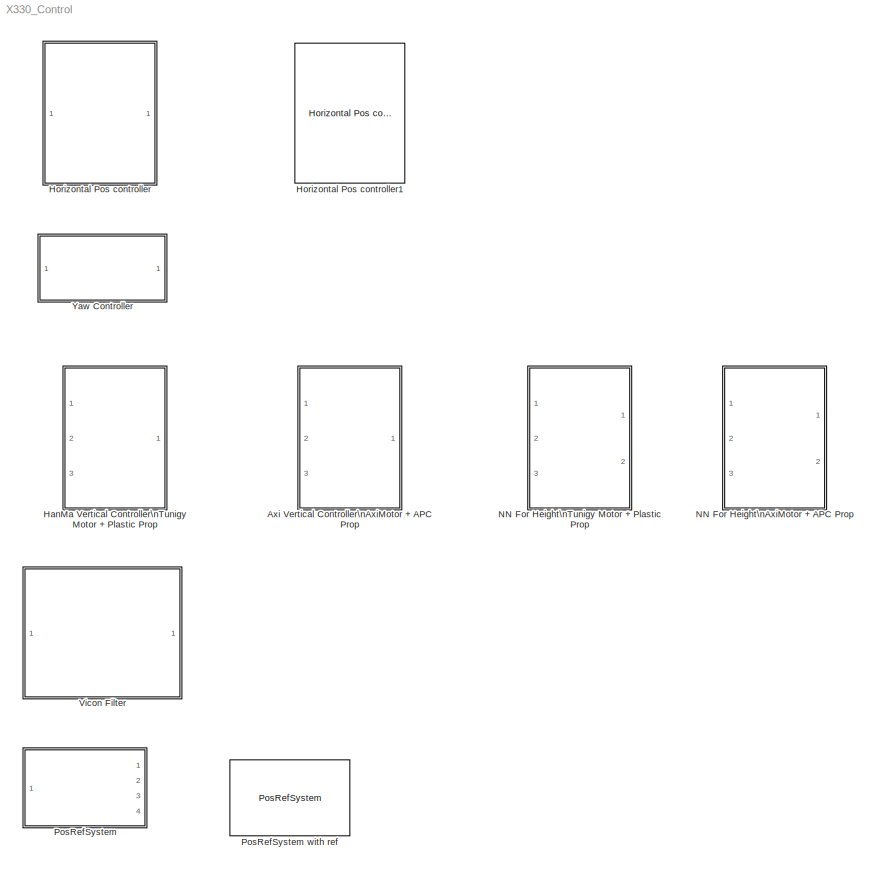
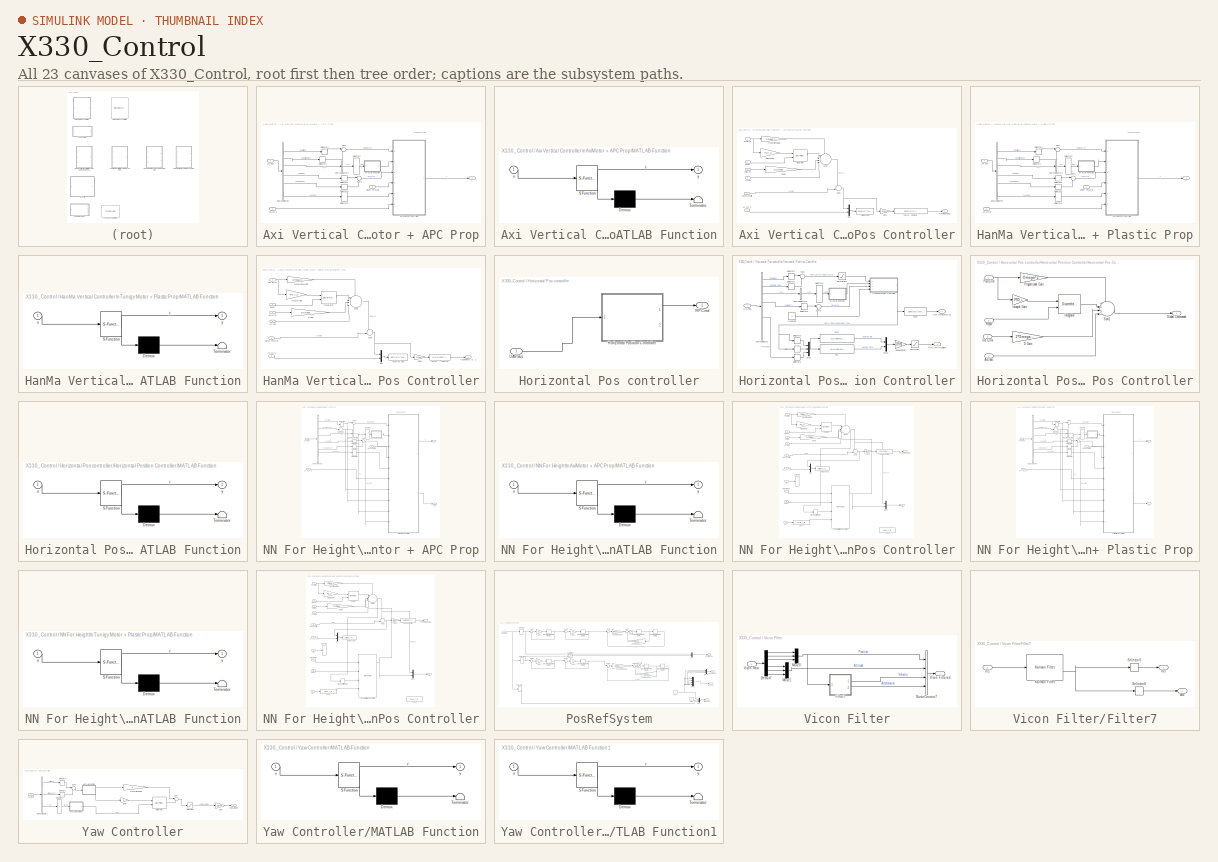
[diagram: thumbnail index - all 23 canvases of the model, root first then tree order]
MODEL X330_Control
KIND library
BLOCK [SubSystem] Axi Vertical Controller\nAxiMotor + APC Prop
  FunctionWithSeparateData = off
  MaskHideContents = off
  MinAlgLoopOccurrences = off
  Opaque = off
  Ports = [3, 1]
  PropExecContextOutsideSubsystem = off
  RTWSystemCode = Auto
  RequestExecContextInheritance = off
  SID = 200
BLOCK [BusSelector] Axi Vertical Controller\nAxiMotor + APC Prop/Bus\nSelector
  OutputSignals = Position,position des,rc,velocity,velocity des,Acc des
  Ports = [1, 6]
  SID = 205
BLOCK [BusSelector] Axi Vertical Controller\nAxiMotor + APC Prop/Bus\nSelector3
  OutputSignals = rc
  Ports = [1, 1]
  SID = 206
BLOCK [Inport] Axi Vertical Controller\nAxiMotor + APC Prop/Hover Throttle
  IconDisplay = Port number
  Port = 2
  SID = 203
BLOCK [SubSystem] Axi Vertical Controller\nAxiMotor + APC Prop/MATLAB Function
  ErrorFcn = Stateflow.Translate.translate
  FunctionWithSeparateData = off
  MaskHideContents = off
  MinAlgLoopOccurrences = off
  Opaque = off
  PermitHierarchicalResolution = ExplicitOnly
  Ports = [1, 1]
  PropExecContextOutsideSubsystem = off
  RTWSystemCode = Auto
  RequestExecContextInheritance = off
  SFBlockType = MATLAB Function
  SID = 964
  TreatAsAtomicUnit = on
BLOCK [Demux] Axi Vertical Controller\nAxiMotor + APC Prop/MATLAB Function/ Demux 
  Outputs = 1
  Ports = [1, 1]
  SID = 964::20
BLOCK [S-Function] Axi Vertical Controller\nAxiMotor + APC Prop/MATLAB Function/ SFunction 
  EnableBusSupport = off
  FunctionName = sf_sfun
  PortCounts = [1 2]
  Ports = [1, 2]
  SID = 964::19
  Tag = Stateflow S-Function X330_Control 2
BLOCK [Terminator] Axi Vertical Controller\nAxiMotor + APC Prop/MATLAB Function/ Terminator 
  SID = 964::22
BLOCK [Inport] Axi Vertical Controller\nAxiMotor + APC Prop/MATLAB Function/u
  IconDisplay = Port number
  SID = 964::1
BLOCK [Outport] Axi Vertical Controller\nAxiMotor + APC Prop/MATLAB Function/y
  IconDisplay = Port number
  SID = 964::5
BLOCK [Selector] Axi Vertical Controller\nAxiMotor + APC Prop/Selector1
  IndexOptions = Index vector (dialog)
  Indices = [3]
  InputPortWidth = 3
  OutputSizes = 1
  Ports = [1, 1]
  SID = 207
BLOCK [Selector] Axi Vertical Controller\nAxiMotor + APC Prop/Selector3
  IndexOptions = Index vector (dialog)
  Indices = [3]
  InputPortWidth = 3
  OutputSizes = 1
  Ports = [1, 1]
  SID = 208
BLOCK [Selector] Axi Vertical Controller\nAxiMotor + APC Prop/Selector4
  IndexOptions = Index vector (dialog)
  Indices = [3]
  InputPortWidth = 3
  OutputSizes = 1
  Ports = [1, 1]
  SID = 209
BLOCK [Selector] Axi Vertical Controller\nAxiMotor + APC Prop/Selector5
  IndexOptions = Index vector (dialog)
  Indices = [3]
  InputPortWidth = 3
  OutputSizes = 1
  Ports = [1, 1]
  SID = 210
BLOCK [Selector] Axi Vertical Controller\nAxiMotor + APC Prop/Selector6
  IndexOptions = Index vector (dialog)
  Indices = [3]
  InputPortWidth = 4
  OutputSizes = 1
  Ports = [1, 1]
  SID = 211
BLOCK [Selector] Axi Vertical Controller\nAxiMotor + APC Prop/Selector7
  IndexOptions = Index vector (dialog)
  Indices = [7]
  InputPortWidth = 8
  OutputSizes = 1
  Ports = [1, 1]
  SID = 212
BLOCK [Sum] Axi Vertical Controller\nAxiMotor + APC Prop/Sum
  IconShape = round
  InputSameDT = off
  Inputs = |-+
  OutDataTypeStr = Inherit: Inherit via internal rule
  Ports = [2, 1]
  SID = 213
  SaturateOnIntegerOverflow = off
BLOCK [Sum] Axi Vertical Controller\nAxiMotor + APC Prop/Sum1
  IconShape = round
  InputSameDT = off
  Inputs = |-+
  OutDataTypeStr = Inherit: Inherit via internal rule
  Ports = [2, 1]
  SID = 214
  SaturateOnIntegerOverflow = off
BLOCK [Outport] Axi Vertical Controller\nAxiMotor + APC Prop/T
  IconDisplay = Port number
  SID = 233
BLOCK [Inport] Axi Vertical Controller\nAxiMotor + APC Prop/UAV bus
  IconDisplay = Port number
  SID = 202
BLOCK [SubSystem] Axi Vertical Controller\nAxiMotor + APC Prop/Verticall Pos Controller
  FunctionWithSeparateData = off
  MaskHideContents = off
  MinAlgLoopOccurrences = off
  Opaque = off
  Ports = [6, 1]
  PropExecContextOutsideSubsystem = off
  RTWSystemCode = Auto
  RequestExecContextInheritance = off
  SID = 215
BLOCK [Inport] Axi Vertical Controller\nAxiMotor + APC Prop/Verticall Pos Controller/Acc des
  IconDisplay = Port number
  Port = 5
  SID = 220
BLOCK [Gain] Axi Vertical Controller\nAxiMotor + APC Prop/Verticall Pos Controller/D Gain
  Gain = 2*Omega_h*Zeta_h
  OutDataTypeStr = double
  ParamDataTypeStr = Inherit: Inherit via internal rule
  SID = 222
  SaturateOnIntegerOverflow = off
BLOCK [Fcn] Axi Vertical Controller\nAxiMotor + APC Prop/Verticall Pos Controller/Force --> Control
  Expr = 0.0317*u(1) +0.1208
  SID = 223
BLOCK [Inport] Axi Vertical Controller\nAxiMotor + APC Prop/Verticall Pos Controller/Hover Throttle
  IconDisplay = Port number
  Port = 4
  SID = 219
BLOCK [Gain] Axi Vertical Controller\nAxiMotor + APC Prop/Verticall Pos Controller/Integral Gain
  DisableCoverage = on
  Gain = PID_I_h
  OutDataTypeStr = double
  ParamDataTypeStr = double
  SID = 224
  SaturateOnIntegerOverflow = off
BLOCK [DiscreteIntegrator] Axi Vertical Controller\nAxiMotor + APC Prop/Verticall Pos Controller/Integrator
  DisableCoverage = on
  ExternalReset = level
  ICPrevOutput = DiscIntNeverNeededParam
  ICPrevScaledInput = DiscIntNeverNeededParam
  InitialConditionMode = State only (most efficient)
  IntegratorMethod = Integration: Trapezoidal
  LowerSaturationLimit = -0.3
  OutDataTypeStr = double
  Ports = [2, 1]
  SID = 225
  SampleTime = -1
  UpperSaturationLimit = 0.3
BLOCK [Gain] Axi Vertical Controller\nAxiMotor + APC Prop/Verticall Pos Controller/Mass
  DisableCoverage = on
  Gain = mass
  OutDataTypeStr = double
  ParamDataTypeStr = double
  SID = 226
  SaturateOnIntegerOverflow = off
BLOCK [Mux] Axi Vertical Controller\nAxiMotor + APC Prop/Verticall Pos Controller/Mux
  DisplayOption = bar
  Inputs = 2
  Ports = [2, 1]
  SID = 227
BLOCK [Inport] Axi Vertical Controller\nAxiMotor + APC Prop/Verticall Pos Controller/Pos Error
  IconDisplay = Port number
  SID = 216
BLOCK [Gain] Axi Vertical Controller\nAxiMotor + APC Prop/Verticall Pos Controller/Proportional Gain
  DisableCoverage = on
  Gain = Omega_h^2
  OutDataTypeStr = double
  ParamDataTypeStr = double
  SID = 228
  SaturateOnIntegerOverflow = off
BLOCK [Inport] Axi Vertical Controller\nAxiMotor + APC Prop/Verticall Pos Controller/Reset
  IconDisplay = Port number
  Port = 2
  SID = 217
BLOCK [Sum] Axi Vertical Controller\nAxiMotor + APC Prop/Verticall Pos Controller/Sum1
  AccumDataTypeStr = double
  DisableCoverage = on
  IconShape = round
  InputSameDT = off
  Inputs = ----|
  OutDataTypeStr = double
  Ports = [4, 1]
  SID = 229
  SampleTime = 0.02
  SaturateOnIntegerOverflow = off
BLOCK [Sum] Axi Vertical Controller\nAxiMotor + APC Prop/Verticall Pos Controller/Sum2
  AccumDataTypeStr = double
  DisableCoverage = on
  IconShape = round
  InputSameDT = off
  Inputs = ++|
  OutDataTypeStr = double
  Ports = [2, 1]
  SID = 230
  SampleTime = 0.02
  SaturateOnIntegerOverflow = off
BLOCK [Outport] Axi Vertical Controller\nAxiMotor + APC Prop/Verticall Pos Controller/T  Commands [0, 1]
  IconDisplay = Port number
  SID = 232
BLOCK [Fcn] Axi Vertical Controller\nAxiMotor + APC Prop/Verticall Pos Controller/Total Acc des
  Expr = sqrt(u(1)^2+u(2)^2)
  SID = 231
BLOCK [Inport] Axi Vertical Controller\nAxiMotor + APC Prop/Verticall Pos Controller/Vel Error
  IconDisplay = Port number
  Port = 3
  SID = 218
BLOCK [Inport] Axi Vertical Controller\nAxiMotor + APC Prop/Verticall Pos Controller/XY_Acc_d
  IconDisplay = Port number
  Port = 6
  SID = 221
BLOCK [Inport] Axi Vertical Controller\nAxiMotor + APC Prop/XY_Acc_d
  IconDisplay = Port number
  Port = 3
  SID = 204
BLOCK [SubSystem] HanMa Vertical Controller\nTunigy Motor + Plastic Prop
  FunctionWithSeparateData = off
  MaskHideContents = off
  MinAlgLoopOccurrences = off
  Opaque = off
  Ports = [3, 1]
  PropExecContextOutsideSubsystem = off
  RTWSystemCode = Auto
  RequestExecContextInheritance = off
  SID = 57
BLOCK [BusSelector] HanMa Vertical Controller\nTunigy Motor + Plastic Prop/Bus\nSelector
  OutputSignals = Position,position des,rc,velocity,velocity des,Acc des
  Ports = [1, 6]
  SID = 61
BLOCK [BusSelector] HanMa Vertical Controller\nTunigy Motor + Plastic Prop/Bus\nSelector3
  OutputSignals = rc
  Ports = [1, 1]
  SID = 62
BLOCK [Inport] HanMa Vertical Controller\nTunigy Motor + Plastic Prop/Hover Throttle
  IconDisplay = Port number
  Port = 2
  SID = 59
BLOCK [SubSystem] HanMa Vertical Controller\nTunigy Motor + Plastic Prop/MATLAB Function
  ErrorFcn = Stateflow.Translate.translate
  FunctionWithSeparateData = off
  MaskHideContents = off
  MinAlgLoopOccurrences = off
  Opaque = off
  PermitHierarchicalResolution = ExplicitOnly
  Ports = [1, 1]
  PropExecContextOutsideSubsystem = off
  RTWSystemCode = Auto
  RequestExecContextInheritance = off
  SFBlockType = MATLAB Function
  SID = 967
  TreatAsAtomicUnit = on
BLOCK [Demux] HanMa Vertical Controller\nTunigy Motor + Plastic Prop/MATLAB Function/ Demux 
  Outputs = 1
  Ports = [1, 1]
  SID = 967::24
BLOCK [S-Function] HanMa Vertical Controller\nTunigy Motor + Plastic Prop/MATLAB Function/ SFunction 
  EnableBusSupport = off
  FunctionName = sf_sfun
  PortCounts = [1 2]
  Ports = [1, 2]
  SID = 967::23
  Tag = Stateflow S-Function X330_Control 4
BLOCK [Terminator] HanMa Vertical Controller\nTunigy Motor + Plastic Prop/MATLAB Function/ Terminator 
  SID = 967::26
BLOCK [Inport] HanMa Vertical Controller\nTunigy Motor + Plastic Prop/MATLAB Function/u
  IconDisplay = Port number
  SID = 967::1
BLOCK [Outport] HanMa Vertical Controller\nTunigy Motor + Plastic Prop/MATLAB Function/y
  IconDisplay = Port number
  SID = 967::5
BLOCK [Selector] HanMa Vertical Controller\nTunigy Motor + Plastic Prop/Selector1
  IndexOptions = Index vector (dialog)
  Indices = [3]
  InputPortWidth = 3
  OutputSizes = 1
  Ports = [1, 1]
  SID = 66
BLOCK [Selector] HanMa Vertical Controller\nTunigy Motor + Plastic Prop/Selector2
  IndexOptions = Index vector (dialog)
  Indices = [7]
  InputPortWidth = 8
  OutputSizes = 1
  Ports = [1, 1]
  SID = 968
BLOCK [Selector] HanMa Vertical Controller\nTunigy Motor + Plastic Prop/Selector3
  IndexOptions = Index vector (dialog)
  Indices = [3]
  InputPortWidth = 3
  OutputSizes = 1
  Ports = [1, 1]
  SID = 68
BLOCK [Selector] HanMa Vertical Controller\nTunigy Motor + Plastic Prop/Selector4
  IndexOptions = Index vector (dialog)
  Indices = [3]
  InputPortWidth = 3
  OutputSizes = 1
  Ports = [1, 1]
  SID = 69
BLOCK [Selector] HanMa Vertical Controller\nTunigy Motor + Plastic Prop/Selector5
  IndexOptions = Index vector (dialog)
  Indices = [3]
  InputPortWidth = 3
  OutputSizes = 1
  Ports = [1, 1]
  SID = 70
BLOCK [Selector] HanMa Vertical Controller\nTunigy Motor + Plastic Prop/Selector6
  IndexOptions = Index vector (dialog)
  Indices = [3]
  InputPortWidth = 4
  OutputSizes = 1
  Ports = [1, 1]
  SID = 71
BLOCK [Sum] HanMa Vertical Controller\nTunigy Motor + Plastic Prop/Sum
  IconShape = round
  InputSameDT = off
  Inputs = |-+
  OutDataTypeStr = Inherit: Inherit via internal rule
  Ports = [2, 1]
  SID = 73
  SaturateOnIntegerOverflow = off
BLOCK [Sum] HanMa Vertical Controller\nTunigy Motor + Plastic Prop/Sum1
  IconShape = round
  InputSameDT = off
  Inputs = |-+
  OutDataTypeStr = Inherit: Inherit via internal rule
  Ports = [2, 1]
  SID = 74
  SaturateOnIntegerOverflow = off
BLOCK [Outport] HanMa Vertical Controller\nTunigy Motor + Plastic Prop/T
  IconDisplay = Port number
  SID = 90
BLOCK [Inport] HanMa Vertical Controller\nTunigy Motor + Plastic Prop/UAV bus
  IconDisplay = Port number
  SID = 58
BLOCK [SubSystem] HanMa Vertical Controller\nTunigy Motor + Plastic Prop/Verticall Pos Controller
  FunctionWithSeparateData = off
  MaskHideContents = off
  MinAlgLoopOccurrences = off
  Opaque = off
  Ports = [6, 1]
  PropExecContextOutsideSubsystem = off
  RTWSystemCode = Auto
  RequestExecContextInheritance = off
  SID = 75
BLOCK [Inport] HanMa Vertical Controller\nTunigy Motor + Plastic Prop/Verticall Pos Controller/Acc des
  IconDisplay = Port number
  Port = 5
  SID = 80
BLOCK [Gain] HanMa Vertical Controller\nTunigy Motor + Plastic Prop/Verticall Pos Controller/D Gain
  Gain = 2*Omega_h*Zeta_h
  OutDataTypeStr = double
  ParamDataTypeStr = Inherit: Inherit via internal rule
  SID = 81
  SaturateOnIntegerOverflow = off
BLOCK [Fcn] HanMa Vertical Controller\nTunigy Motor + Plastic Prop/Verticall Pos Controller/Force --> Control
  Expr = u(1)*0.0297 + 0.1485
  SID = 192
BLOCK [Inport] HanMa Vertical Controller\nTunigy Motor + Plastic Prop/Verticall Pos Controller/Hover Throttle
  IconDisplay = Port number
  Port = 4
  SID = 79
BLOCK [Gain] HanMa Vertical Controller\nTunigy Motor + Plastic Prop/Verticall Pos Controller/Integral Gain
  DisableCoverage = on
  Gain = PID_I_h
  OutDataTypeStr = double
  ParamDataTypeStr = double
  SID = 83
  SaturateOnIntegerOverflow = off
BLOCK [DiscreteIntegrator] HanMa Vertical Controller\nTunigy Motor + Plastic Prop/Verticall Pos Controller/Integrator
  DisableCoverage = on
  ExternalReset = level
  ICPrevOutput = DiscIntNeverNeededParam
  ICPrevScaledInput = DiscIntNeverNeededParam
  InitialConditionMode = State only (most efficient)
  IntegratorMethod = Integration: Trapezoidal
  LowerSaturationLimit = -0.3
  OutDataTypeStr = double
  Ports = [2, 1]
  SID = 84
  SampleTime = -1
  UpperSaturationLimit = 0.3
BLOCK [Gain] HanMa Vertical Controller\nTunigy Motor + Plastic Prop/Verticall Pos Controller/Mass
  DisableCoverage = on
  Gain = mass
  OutDataTypeStr = double
  ParamDataTypeStr = double
  SID = 193
  SaturateOnIntegerOverflow = off
BLOCK [Mux] HanMa Vertical Controller\nTunigy Motor + Plastic Prop/Verticall Pos Controller/Mux
  DisplayOption = bar
  Inputs = 2
  Ports = [2, 1]
  SID = 194
BLOCK [Inport] HanMa Vertical Controller\nTunigy Motor + Plastic Prop/Verticall Pos Controller/Pos Error
  IconDisplay = Port number
  SID = 76
BLOCK [Gain] HanMa Vertical Controller\nTunigy Motor + Plastic Prop/Verticall Pos Controller/Proportional Gain
  DisableCoverage = on
  Gain = Omega_h^2
  OutDataTypeStr = double
  ParamDataTypeStr = double
  SID = 86
  SaturateOnIntegerOverflow = off
BLOCK [Inport] HanMa Vertical Controller\nTunigy Motor + Plastic Prop/Verticall Pos Controller/Reset
  IconDisplay = Port number
  Port = 2
  SID = 77
BLOCK [Sum] HanMa Vertical Controller\nTunigy Motor + Plastic Prop/Verticall Pos Controller/Sum1
  AccumDataTypeStr = double
  DisableCoverage = on
  IconShape = round
  InputSameDT = off
  Inputs = ----|
  OutDataTypeStr = double
  Ports = [4, 1]
  SID = 87
  SampleTime = 0.02
  SaturateOnIntegerOverflow = off
BLOCK [Sum] HanMa Vertical Controller\nTunigy Motor + Plastic Prop/Verticall Pos Controller/Sum2
  AccumDataTypeStr = double
  DisableCoverage = on
  IconShape = round
  InputSameDT = off
  Inputs = ++|
  OutDataTypeStr = double
  Ports = [2, 1]
  SID = 197
  SampleTime = 0.02
  SaturateOnIntegerOverflow = off
BLOCK [Outport] HanMa Vertical Controller\nTunigy Motor + Plastic Prop/Verticall Pos Controller/T  Commands [0, 1]
  IconDisplay = Port number
  SID = 89
BLOCK [Fcn] HanMa Vertical Controller\nTunigy Motor + Plastic Prop/Verticall Pos Controller/Total Acc des
  Expr = sqrt(u(1)^2+u(2)^2)
  SID = 198
BLOCK [Inport] HanMa Vertical Controller\nTunigy Motor + Plastic Prop/Verticall Pos Controller/Vel Error
  IconDisplay = Port number
  Port = 3
  SID = 78
BLOCK [Inport] HanMa Vertical Controller\nTunigy Motor + Plastic Prop/Verticall Pos Controller/XY_Acc_d
  IconDisplay = Port number
  Port = 6
  SID = 199
BLOCK [Inport] HanMa Vertical Controller\nTunigy Motor + Plastic Prop/XY_Acc_d
  IconDisplay = Port number
  Port = 3
  SID = 185
BLOCK [SubSystem] Horizontal Pos controller
  FunctionWithSeparateData = off
  MaskHideContents = off
  MinAlgLoopOccurrences = off
  Opaque = off
  Ports = [1, 1]
  PropExecContextOutsideSubsystem = off
  RTWSystemCode = Auto
  RequestExecContextInheritance = off
  SID = 1
BLOCK [SubSystem] Horizontal Pos controller/Horizontal Position Controller
  FunctionWithSeparateData = off
  MaskHideContents = off
  MinAlgLoopOccurrences = off
  Opaque = off
  Ports = [1, 2]
  PropExecContextOutsideSubsystem = off
  RTWSystemCode = Auto
  RequestExecContextInheritance = off
  SID = 5
BLOCK [BusSelector] Horizontal Pos controller/Horizontal Position Controller/Bus\nSelector
  OutputSignals = Position,position des,rc,velocity,velocity des,Attitude,Acceleration,Acc des
  Ports = [1, 8]
  SID = 7
BLOCK [BusSelector] Horizontal Pos controller/Horizontal Position Controller/Bus\nSelector3
  OutputSignals = rc
  Ports = [1, 1]
  SID = 8
BLOCK [Constant] Horizontal Pos controller/Horizontal Position Controller/Constant
  SID = 1083
  Value = 0
BLOCK [Outport] Horizontal Pos controller/Horizontal Position Controller/Des Horizontal Acc
  IconDisplay = Port number
  Port = 2
  SID = 183
BLOCK [Fcn] Horizontal Pos controller/Horizontal Position Controller/Fcn
  Expr = -u(1)*cos(u(3)) - u(2)*sin(u(3))
  SID = 9
BLOCK [Fcn] Horizontal Pos controller/Horizontal Position Controller/Fcn1
  Expr = -u(1)*sin(u(3)) + u(2)*cos(u(3))
  SID = 10
BLOCK [Fcn] Horizontal Pos controller/Horizontal Position Controller/Fcn2
  Expr = sqrt(u(1)^2+u(1)^2)
  SID = 182
BLOCK [SubSystem] Horizontal Pos controller/Horizontal Position Controller/Horizontal Pos Controller
  FunctionWithSeparateData = off
  MaskHideContents = off
  MinAlgLoopOccurrences = off
  Opaque = off
  Ports = [4, 1]
  PropExecContextOutsideSubsystem = off
  RTWSystemCode = Auto
  RequestExecContextInheritance = off
  SID = 11
BLOCK [Inport] Horizontal Pos controller/Horizontal Position Controller/Horizontal Pos Controller/Acc des
  IconDisplay = Port number
  Port = 4
  SID = 15
BLOCK [Gain] Horizontal Pos controller/Horizontal Position Controller/Horizontal Pos Controller/D Gain
  Gain = 2*Omega*Zeta
  OutDataTypeStr = double
  ParamDataTypeStr = Inherit: Inherit via internal rule
  SID = 16
  SaturateOnIntegerOverflow = off
BLOCK [Outport] Horizontal Pos controller/Horizontal Position Controller/Horizontal Pos Controller/Global Commands
  IconDisplay = Port number
  SID = 21
BLOCK [Gain] Horizontal Pos controller/Horizontal Position Controller/Horizontal Pos Controller/Integral Gain
  DisableCoverage = on
  Gain = PID_i
  OutDataTypeStr = double
  ParamDataTypeStr = double
  SID = 17
  SaturateOnIntegerOverflow = off
BLOCK [DiscreteIntegrator] Horizontal Pos controller/Horizontal Position Controller/Horizontal Pos Controller/Integrator
  DisableCoverage = on
  ExternalReset = level
  ICPrevOutput = DiscIntNeverNeededParam
  ICPrevScaledInput = DiscIntNeverNeededParam
  InitialConditionMode = State only (most efficient)
  IntegratorMethod = Integration: Trapezoidal
  LimitOutput = on
  LowerSaturationLimit = -0.5
  OutDataTypeStr = double
  Ports = [2, 1]
  SID = 18
  SampleTime = -1
  UpperSaturationLimit = 0.5
BLOCK [Inport] Horizontal Pos controller/Horizontal Position Controller/Horizontal Pos Controller/Pos Error
  IconDisplay = Port number
  SID = 12
BLOCK [Gain] Horizontal Pos controller/Horizontal Position Controller/Horizontal Pos Controller/Proportional Gain
  DisableCoverage = on
  Gain = Omega^2
  OutDataTypeStr = double
  ParamDataTypeStr = double
  SID = 19
  SaturateOnIntegerOverflow = off
BLOCK [Inport] Horizontal Pos controller/Horizontal Position Controller/Horizontal Pos Controller/Reset
  IconDisplay = Port number
  Port = 2
  SID = 13
BLOCK [Sum] Horizontal Pos controller/Horizontal Position Controller/Horizontal Pos Controller/Sum1
  AccumDataTypeStr = double
  DisableCoverage = on
  IconShape = round
  InputSameDT = off
  Inputs = ++++|
  OutDataTypeStr = double
  Ports = [4, 1]
  SID = 20
  SampleTime = 0.02
  SaturateOnIntegerOverflow = off
BLOCK [Inport] Horizontal Pos controller/Horizontal Position Controller/Horizontal Pos Controller/Vel Error
  IconDisplay = Port number
  Port = 3
  SID = 14
BLOCK [Gain] Horizontal Pos controller/Horizontal Position Controller/Linearization
  Gain = 1/9.81
  OutDataTypeStr = double
  ParamDataTypeStr = Inherit: Inherit via internal rule
  SID = 22
  SaturateOnIntegerOverflow = off
BLOCK [SubSystem] Horizontal Pos controller/Horizontal Position Controller/MATLAB Function
  ErrorFcn = Stateflow.Translate.translate
  FunctionWithSeparateData = off
  MaskHideContents = off
  MinAlgLoopOccurrences = off
  Opaque = off
  PermitHierarchicalResolution = ExplicitOnly
  Ports = [1, 1]
  PropExecContextOutsideSubsystem = off
  RTWSystemCode = Auto
  RequestExecContextInheritance = off
  SFBlockType = MATLAB Function
  SID = 971
  TreatAsAtomicUnit = on
BLOCK [Demux] Horizontal Pos controller/Horizontal Position Controller/MATLAB Function/ Demux 
  Outputs = 1
  Ports = [1, 1]
  SID = 971::24
BLOCK [S-Function] Horizontal Pos controller/Horizontal Position Controller/MATLAB Function/ SFunction 
  EnableBusSupport = off
  FunctionName = sf_sfun
  PortCounts = [1 2]
  Ports = [1, 2]
  SID = 971::23
  Tag = Stateflow S-Function X330_Control 6
BLOCK [Terminator] Horizontal Pos controller/Horizontal Position Controller/MATLAB Function/ Terminator 
  SID = 971::26
BLOCK [Inport] Horizontal Pos controller/Horizontal Position Controller/MATLAB Function/u
  IconDisplay = Port number
  SID = 971::1
BLOCK [Outport] Horizontal Pos controller/Horizontal Position Controller/MATLAB Function/y
  IconDisplay = Port number
  SID = 971::5
BLOCK [Mux] Horizontal Pos controller/Horizontal Position Controller/Mux
  DisplayOption = bar
  Inputs = 3
  Ports = [3, 1]
  SID = 23
BLOCK [Mux] Horizontal Pos controller/Horizontal Position Controller/Mux1
  DisplayOption = bar
  Inputs = 2
  Ports = [2, 1]
  SID = 24
BLOCK [Outport] Horizontal Pos controller/Horizontal Position Controller/RP Cmd (Radian)
  IconDisplay = Port number
  SID = 37
BLOCK [Saturate] Horizontal Pos controller/Horizontal Position Controller/Saturation
  InputPortMap = u0
  LowerLimit = -Max_RP
  Ports = [1, 1]
  SID = 25
  UpperLimit = Max_RP
BLOCK [Saturate] Horizontal Pos controller/Horizontal Position Controller/Saturation1
  InputPortMap = u0
  LowerLimit = -3
  Ports = [1, 1]
  SID = 1081
  UpperLimit = 3
BLOCK [Selector] Horizontal Pos controller/Horizontal Position Controller/Selector1
  IndexOptions = Index vector (dialog)
  Indices = [1 2]
  InputPortWidth = 3
  OutputSizes = 1
  Ports = [1, 1]
  SID = 26
BLOCK [Selector] Horizontal Pos controller/Horizontal Position Controller/Selector2
  IndexOptions = Index vector (dialog)
  Indices = [1 2]
  InputPortWidth = 3
  OutputSizes = 1
  Ports = [1, 1]
  SID = 28
BLOCK [Selector] Horizontal Pos controller/Horizontal Position Controller/Selector3
  IndexOptions = Index vector (dialog)
  Indices = [1]
  InputPortWidth = 2
  OutputSizes = 1
  Ports = [1, 1]
  SID = 29
BLOCK [Selector] Horizontal Pos controller/Horizontal Position Controller/Selector4
  IndexOptions = Index vector (dialog)
  Indices = [2]
  InputPortWidth = 2
  OutputSizes = 1
  Ports = [1, 1]
  SID = 30
BLOCK [Selector] Horizontal Pos controller/Horizontal Position Controller/Selector5
  IndexOptions = Index vector (dialog)
  Indices = [3]
  InputPortWidth = 3
  OutputSizes = 1
  Ports = [1, 1]
  SID = 31
BLOCK [Selector] Horizontal Pos controller/Horizontal Position Controller/Selector6
  IndexOptions = Index vector (dialog)
  Indices = [1 2]
  InputPortWidth = 3
  OutputSizes = 1
  Ports = [1, 1]
  SID = 32
BLOCK [Selector] Horizontal Pos controller/Horizontal Position Controller/Selector9
  IndexOptions = Index vector (dialog)
  Indices = [7]
  InputPortWidth = 8
  OutputSizes = 1
  Ports = [1, 1]
  SID = 972
BLOCK [Sum] Horizontal Pos controller/Horizontal Position Controller/Sum
  IconShape = round
  InputSameDT = off
  Inputs = |-+
  OutDataTypeStr = Inherit: Inherit via internal rule
  Ports = [2, 1]
  SID = 35
  SaturateOnIntegerOverflow = off
BLOCK [Sum] Horizontal Pos controller/Horizontal Position Controller/Sum1
  IconShape = round
  InputSameDT = off
  Inputs = |-+
  OutDataTypeStr = Inherit: Inherit via internal rule
  Ports = [2, 1]
  SID = 36
  SaturateOnIntegerOverflow = off
BLOCK [Inport] Horizontal Pos controller/Horizontal Position Controller/UAV Bus
  IconDisplay = Port number
  SID = 6
BLOCK [Outport] Horizontal Pos controller/RP Cmd
  IconDisplay = Port number
  SID = 45
BLOCK [Inport] Horizontal Pos controller/UAV Bus
  IconDisplay = Port number
  SID = 2
BLOCK [Reference] Horizontal Pos controller1  REF=X330_Control/Horizontal Pos controller
  Max_RP = 60
  Omega = 2
  PID_i = 1
  Ports = [1, 1]
  SID = 1082
  SourceBlock = X330_Control/Horizontal Pos controller
  Zeta = 0.5
BLOCK [SubSystem] NN For Height\nAxiMotor + APC Prop
  FunctionWithSeparateData = off
  MaskHideContents = off
  MinAlgLoopOccurrences = off
  Opaque = off
  Ports = [3, 2]
  PropExecContextOutsideSubsystem = off
  RTWSystemCode = Auto
  RequestExecContextInheritance = off
  SID = 437
BLOCK [BusSelector] NN For Height\nAxiMotor + APC Prop/Bus\nSelector
  OutputSignals = Position,position des,rc,velocity,velocity des,Acc des
  Ports = [1, 6]
  SID = 441
BLOCK [BusSelector] NN For Height\nAxiMotor + APC Prop/Bus\nSelector3
  OutputSignals = rc
  Ports = [1, 1]
  SID = 442
BLOCK [Inport] NN For Height\nAxiMotor + APC Prop/Hover Throttle
  IconDisplay = Port number
  Port = 2
  SID = 439
BLOCK [SubSystem] NN For Height\nAxiMotor + APC Prop/MATLAB Function
  ErrorFcn = Stateflow.Translate.translate
  FunctionWithSeparateData = off
  MaskHideContents = off
  MinAlgLoopOccurrences = off
  Opaque = off
  PermitHierarchicalResolution = ExplicitOnly
  Ports = [1, 1]
  PropExecContextOutsideSubsystem = off
  RTWSystemCode = Auto
  RequestExecContextInheritance = off
  SFBlockType = MATLAB Function
  SID = 969
  TreatAsAtomicUnit = on
BLOCK [Demux] NN For Height\nAxiMotor + APC Prop/MATLAB Function/ Demux 
  Outputs = 1
  Ports = [1, 1]
  SID = 969::24
BLOCK [S-Function] NN For Height\nAxiMotor + APC Prop/MATLAB Function/ SFunction 
  EnableBusSupport = off
  FunctionName = sf_sfun
  PortCounts = [1 2]
  Ports = [1, 2]
  SID = 969::23
  Tag = Stateflow S-Function X330_Control 5
BLOCK [Terminator] NN For Height\nAxiMotor + APC Prop/MATLAB Function/ Terminator 
  SID = 969::26
BLOCK [Inport] NN For Height\nAxiMotor + APC Prop/MATLAB Function/u
  IconDisplay = Port number
  SID = 969::1
BLOCK [Outport] NN For Height\nAxiMotor + APC Prop/MATLAB Function/y
  IconDisplay = Port number
  SID = 969::5
BLOCK [Outport] NN For Height\nAxiMotor + APC Prop/NN
  IconDisplay = Port number
  Port = 2
  SID = 605
BLOCK [Selector] NN For Height\nAxiMotor + APC Prop/Selector1
  IndexOptions = Index vector (dialog)
  Indices = [3]
  InputPortWidth = 3
  OutputSizes = 1
  Ports = [1, 1]
  SID = 443
BLOCK [Selector] NN For Height\nAxiMotor + APC Prop/Selector2
  IndexOptions = Index vector (dialog)
  Indices = [7]
  InputPortWidth = 8
  OutputSizes = 1
  Ports = [1, 1]
  SID = 970
BLOCK [Selector] NN For Height\nAxiMotor + APC Prop/Selector3
  IndexOptions = Index vector (dialog)
  Indices = [3]
  InputPortWidth = 3
  OutputSizes = 1
  Ports = [1, 1]
  SID = 444
BLOCK [Selector] NN For Height\nAxiMotor + APC Prop/Selector4
  IndexOptions = Index vector (dialog)
  Indices = [3]
  InputPortWidth = 3
  OutputSizes = 1
  Ports = [1, 1]
  SID = 445
BLOCK [Selector] NN For Height\nAxiMotor + APC Prop/Selector5
  IndexOptions = Index vector (dialog)
  Indices = [3]
  InputPortWidth = 3
  OutputSizes = 1
  Ports = [1, 1]
  SID = 446
BLOCK [Selector] NN For Height\nAxiMotor + APC Prop/Selector6
  IndexOptions = Index vector (dialog)
  Indices = [3]
  InputPortWidth = 4
  OutputSizes = 1
  Ports = [1, 1]
  SID = 447
BLOCK [Sum] NN For Height\nAxiMotor + APC Prop/Sum
  IconShape = round
  InputSameDT = off
  Inputs = |-+
  OutDataTypeStr = Inherit: Inherit via internal rule
  Ports = [2, 1]
  SID = 449
  SaturateOnIntegerOverflow = off
BLOCK [Sum] NN For Height\nAxiMotor + APC Prop/Sum1
  IconShape = round
  InputSameDT = off
  Inputs = |-+
  OutDataTypeStr = Inherit: Inherit via internal rule
  Ports = [2, 1]
  SID = 450
  SaturateOnIntegerOverflow = off
BLOCK [Outport] NN For Height\nAxiMotor + APC Prop/T
  IconDisplay = Port number
  SID = 482
BLOCK [Inport] NN For Height\nAxiMotor + APC Prop/UAV bus
  IconDisplay = Port number
  SID = 438
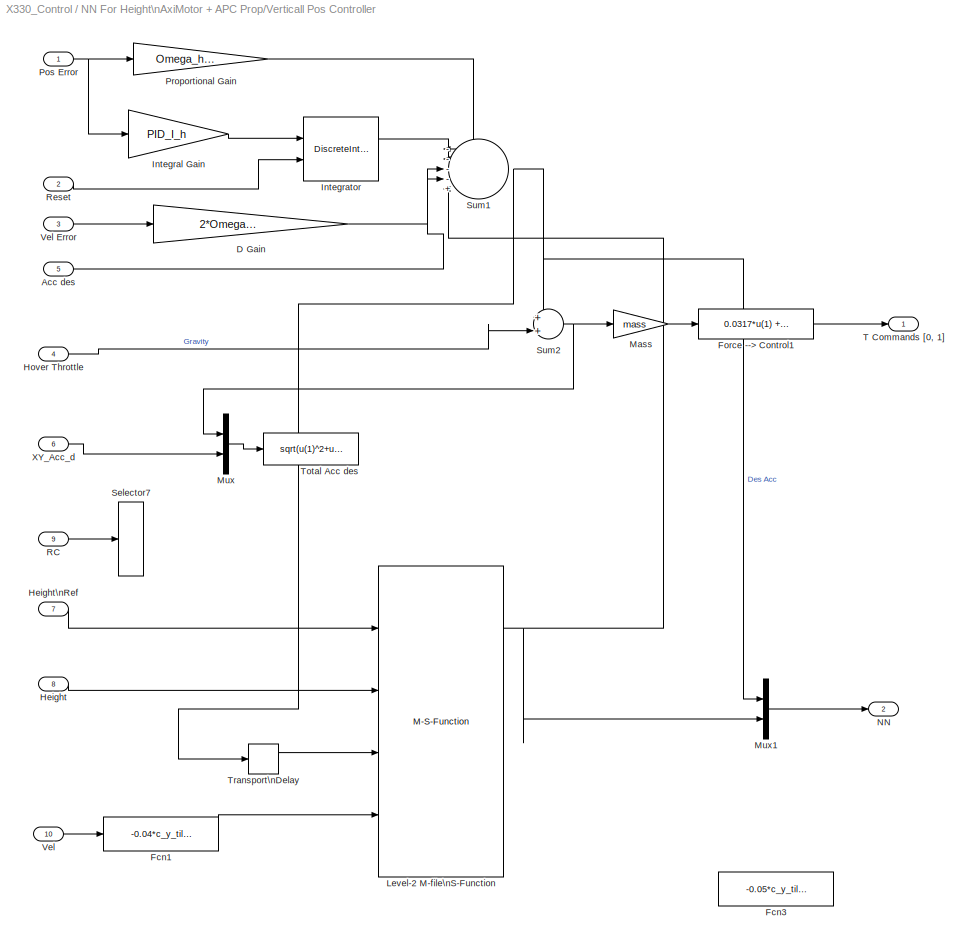
BLOCK [SubSystem] NN For Height\nAxiMotor + APC Prop/Verticall Pos Controller
  FunctionWithSeparateData = off
  MaskHideContents = off
  MinAlgLoopOccurrences = off
  Opaque = off
  Ports = [10, 2]
  PropExecContextOutsideSubsystem = off
  RTWSystemCode = Auto
  RequestExecContextInheritance = off
  SID = 451
BLOCK [Inport] NN For Height\nAxiMotor + APC Prop/Verticall Pos Controller/Acc des
  IconDisplay = Port number
  Port = 5
  SID = 456
BLOCK [Gain] NN For Height\nAxiMotor + APC Prop/Verticall Pos Controller/D Gain
  Gain = 2*Omega_h*Zeta_h
  OutDataTypeStr = double
  ParamDataTypeStr = Inherit: Inherit via internal rule
  SID = 463
  SaturateOnIntegerOverflow = off
BLOCK [Fcn] NN For Height\nAxiMotor + APC Prop/Verticall Pos Controller/Fcn1
  Expr = -0.04*c_y_tilt*u(1)
  SID = 464
BLOCK [Fcn] NN For Height\nAxiMotor + APC Prop/Verticall Pos Controller/Fcn3
  Expr = -0.05*c_y_tilt*u(1)
  SID = 465
BLOCK [Fcn] NN For Height\nAxiMotor + APC Prop/Verticall Pos Controller/Force --> Control1
  Expr = 0.0317*u(1) +0.1208
  SID = 483
BLOCK [Inport] NN For Height\nAxiMotor + APC Prop/Verticall Pos Controller/Height
  IconDisplay = Port number
  Port = 8
  SID = 459
BLOCK [Inport] NN For Height\nAxiMotor + APC Prop/Verticall Pos Controller/Height\nRef
  IconDisplay = Port number
  Port = 7
  SID = 458
BLOCK [Inport] NN For Height\nAxiMotor + APC Prop/Verticall Pos Controller/Hover Throttle
  IconDisplay = Port number
  Port = 4
  SID = 455
BLOCK [Gain] NN For Height\nAxiMotor + APC Prop/Verticall Pos Controller/Integral Gain
  DisableCoverage = on
  Gain = PID_I_h
  OutDataTypeStr = double
  ParamDataTypeStr = double
  SID = 467
  SaturateOnIntegerOverflow = off
BLOCK [DiscreteIntegrator] NN For Height\nAxiMotor + APC Prop/Verticall Pos Controller/Integrator
  DisableCoverage = on
  ExternalReset = level
  ICPrevOutput = DiscIntNeverNeededParam
  ICPrevScaledInput = DiscIntNeverNeededParam
  InitialConditionMode = State only (most efficient)
  IntegratorMethod = Integration: Trapezoidal
  LowerSaturationLimit = -0.3
  OutDataTypeStr = double
  Ports = [2, 1]
  SID = 468
  SampleTime = -1
  UpperSaturationLimit = 0.3
BLOCK [M-S-Function] NN For Height\nAxiMotor + APC Prop/Verticall Pos Controller/Level-2 M-file\nS-Function
  FunctionName = msfcn_Adaptive_NN_HeightOnly
  Parameters = n,r,n2,NN_ST,GAMA_V,gama_V_e,GAMA_W,gama_W_e,alpha,c_f,c_y_tilt,NN_Deadzone_Z,NN_Z_y_min,NN_Z_y_max,NN_Z_v_min,NN_Z_v_max
  Ports = [4, 4]
  SID = 469
BLOCK [Gain] NN For Height\nAxiMotor + APC Prop/Verticall Pos Controller/Mass
  DisableCoverage = on
  Gain = mass
  OutDataTypeStr = double
  ParamDataTypeStr = double
  SID = 470
  SaturateOnIntegerOverflow = off
BLOCK [Mux] NN For Height\nAxiMotor + APC Prop/Verticall Pos Controller/Mux
  DisplayOption = bar
  Inputs = 2
  Ports = [2, 1]
  SID = 471
BLOCK [Mux] NN For Height\nAxiMotor + APC Prop/Verticall Pos Controller/Mux1
  DisplayOption = bar
  Inputs = 2
  Ports = [2, 1]
  SID = 472
BLOCK [Outport] NN For Height\nAxiMotor + APC Prop/Verticall Pos Controller/NN
  IconDisplay = Port number
  Port = 2
  SID = 604
BLOCK [Inport] NN For Height\nAxiMotor + APC Prop/Verticall Pos Controller/Pos Error
  IconDisplay = Port number
  SID = 452
BLOCK [Gain] NN For Height\nAxiMotor + APC Prop/Verticall Pos Controller/Proportional Gain
  DisableCoverage = on
  Gain = Omega_h^2
  OutDataTypeStr = double
  ParamDataTypeStr = double
  SID = 473
  SaturateOnIntegerOverflow = off
BLOCK [Inport] NN For Height\nAxiMotor + APC Prop/Verticall Pos Controller/RC
  IconDisplay = Port number
  Port = 9
  SID = 460
BLOCK [Inport] NN For Height\nAxiMotor + APC Prop/Verticall Pos Controller/Reset
  IconDisplay = Port number
  Port = 2
  SID = 453
BLOCK [Selector] NN For Height\nAxiMotor + APC Prop/Verticall Pos Controller/Selector7
  IndexOptions = Index vector (dialog)
  Indices = [6]
  InputPortWidth = 8
  OutputSizes = 1
  Ports = [1, 1]
  SID = 475
BLOCK [Sum] NN For Height\nAxiMotor + APC Prop/Verticall Pos Controller/Sum1
  AccumDataTypeStr = double
  DisableCoverage = on
  IconShape = round
  InputSameDT = off
  Inputs = ----+|
  OutDataTypeStr = double
  Ports = [5, 1]
  SID = 476
  SampleTime = 0.02
  SaturateOnIntegerOverflow = off
BLOCK [Sum] NN For Height\nAxiMotor + APC Prop/Verticall Pos Controller/Sum2
  AccumDataTypeStr = double
  DisableCoverage = on
  IconShape = round
  InputSameDT = off
  Inputs = ++|
  OutDataTypeStr = double
  Ports = [2, 1]
  SID = 477
  SampleTime = 0.02
  SaturateOnIntegerOverflow = off
BLOCK [Outport] NN For Height\nAxiMotor + APC Prop/Verticall Pos Controller/T  Commands [0, 1]
  IconDisplay = Port number
  SID = 481
BLOCK [Fcn] NN For Height\nAxiMotor + APC Prop/Verticall Pos Controller/Total Acc des
  Expr = sqrt(u(1)^2+u(2)^2)
  SID = 479
BLOCK [TransportDelay] NN For Height\nAxiMotor + APC Prop/Verticall Pos Controller/Transport\nDelay
  DelayTime = 0.02
  Ports = [1, 1]
  SID = 480
BLOCK [Inport] NN For Height\nAxiMotor + APC Prop/Verticall Pos Controller/Vel
  IconDisplay = Port number
  Port = 10
  SID = 461
BLOCK [Inport] NN For Height\nAxiMotor + APC Prop/Verticall Pos Controller/Vel Error
  IconDisplay = Port number
  Port = 3
  SID = 454
BLOCK [Inport] NN For Height\nAxiMotor + APC Prop/Verticall Pos Controller/XY_Acc_d
  IconDisplay = Port number
  Port = 6
  SID = 457
BLOCK [Inport] NN For Height\nAxiMotor + APC Prop/XY_Acc_d
  IconDisplay = Port number
  Port = 3
  SID = 440
BLOCK [SubSystem] NN For Height\nTunigy Motor + Plastic Prop
  FunctionWithSeparateData = off
  MaskHideContents = off
  MinAlgLoopOccurrences = off
  Opaque = off
  Ports = [3, 2]
  PropExecContextOutsideSubsystem = off
  RTWSystemCode = Auto
  RequestExecContextInheritance = off
  SID = 391
BLOCK [BusSelector] NN For Height\nTunigy Motor + Plastic Prop/Bus\nSelector
  OutputSignals = Position,position des,rc,velocity,velocity des,Acc des
  Ports = [1, 6]
  SID = 395
BLOCK [BusSelector] NN For Height\nTunigy Motor + Plastic Prop/Bus\nSelector3
  OutputSignals = rc
  Ports = [1, 1]
  SID = 396
BLOCK [Inport] NN For Height\nTunigy Motor + Plastic Prop/Hover Throttle
  IconDisplay = Port number
  Port = 2
  SID = 393
BLOCK [SubSystem] NN For Height\nTunigy Motor + Plastic Prop/MATLAB Function
  ErrorFcn = Stateflow.Translate.translate
  FunctionWithSeparateData = off
  MaskHideContents = off
  MinAlgLoopOccurrences = off
  Opaque = off
  PermitHierarchicalResolution = ExplicitOnly
  Ports = [1, 1]
  PropExecContextOutsideSubsystem = off
  RTWSystemCode = Auto
  RequestExecContextInheritance = off
  SFBlockType = MATLAB Function
  SID = 965
  TreatAsAtomicUnit = on
BLOCK [Demux] NN For Height\nTunigy Motor + Plastic Prop/MATLAB Function/ Demux 
  Outputs = 1
  Ports = [1, 1]
  SID = 965::24
BLOCK [S-Function] NN For Height\nTunigy Motor + Plastic Prop/MATLAB Function/ SFunction 
  EnableBusSupport = off
  FunctionName = sf_sfun
  PortCounts = [1 2]
  Ports = [1, 2]
  SID = 965::23
  Tag = Stateflow S-Function X330_Control 3
BLOCK [Terminator] NN For Height\nTunigy Motor + Plastic Prop/MATLAB Function/ Terminator 
  SID = 965::26
BLOCK [Inport] NN For Height\nTunigy Motor + Plastic Prop/MATLAB Function/u
  IconDisplay = Port number
  SID = 965::1
BLOCK [Outport] NN For Height\nTunigy Motor + Plastic Prop/MATLAB Function/y
  IconDisplay = Port number
  SID = 965::5
BLOCK [Outport] NN For Height\nTunigy Motor + Plastic Prop/NN
  IconDisplay = Port number
  Port = 2
  SID = 606
BLOCK [Selector] NN For Height\nTunigy Motor + Plastic Prop/Selector1
  IndexOptions = Index vector (dialog)
  Indices = [3]
  InputPortWidth = 3
  OutputSizes = 1
  Ports = [1, 1]
  SID = 397
BLOCK [Selector] NN For Height\nTunigy Motor + Plastic Prop/Selector2
  IndexOptions = Index vector (dialog)
  Indices = [7]
  InputPortWidth = 8
  OutputSizes = 1
  Ports = [1, 1]
  SID = 966
BLOCK [Selector] NN For Height\nTunigy Motor + Plastic Prop/Selector3
  IndexOptions = Index vector (dialog)
  Indices = [3]
  InputPortWidth = 3
  OutputSizes = 1
  Ports = [1, 1]
  SID = 398
BLOCK [Selector] NN For Height\nTunigy Motor + Plastic Prop/Selector4
  IndexOptions = Index vector (dialog)
  Indices = [3]
  InputPortWidth = 3
  OutputSizes = 1
  Ports = [1, 1]
  SID = 399
BLOCK [Selector] NN For Height\nTunigy Motor + Plastic Prop/Selector5
  IndexOptions = Index vector (dialog)
  Indices = [3]
  InputPortWidth = 3
  OutputSizes = 1
  Ports = [1, 1]
  SID = 400
BLOCK [Selector] NN For Height\nTunigy Motor + Plastic Prop/Selector6
  IndexOptions = Index vector (dialog)
  Indices = [3]
  InputPortWidth = 4
  OutputSizes = 1
  Ports = [1, 1]
  SID = 401
BLOCK [Sum] NN For Height\nTunigy Motor + Plastic Prop/Sum
  IconShape = round
  InputSameDT = off
  Inputs = |-+
  OutDataTypeStr = Inherit: Inherit via internal rule
  Ports = [2, 1]
  SID = 403
  SaturateOnIntegerOverflow = off
BLOCK [Sum] NN For Height\nTunigy Motor + Plastic Prop/Sum1
  IconShape = round
  InputSameDT = off
  Inputs = |-+
  OutDataTypeStr = Inherit: Inherit via internal rule
  Ports = [2, 1]
  SID = 404
  SaturateOnIntegerOverflow = off
BLOCK [Outport] NN For Height\nTunigy Motor + Plastic Prop/T
  IconDisplay = Port number
  SID = 436
BLOCK [Inport] NN For Height\nTunigy Motor + Plastic Prop/UAV bus
  IconDisplay = Port number
  SID = 392
BLOCK [SubSystem] NN For Height\nTunigy Motor + Plastic Prop/Verticall Pos Controller
  FunctionWithSeparateData = off
  MaskHideContents = off
  MinAlgLoopOccurrences = off
  Opaque = off
  Ports = [10, 2]
  PropExecContextOutsideSubsystem = off
  RTWSystemCode = Auto
  RequestExecContextInheritance = off
  SID = 405
BLOCK [Inport] NN For Height\nTunigy Motor + Plastic Prop/Verticall Pos Controller/Acc des
  IconDisplay = Port number
  Port = 5
  SID = 410
BLOCK [Gain] NN For Height\nTunigy Motor + Plastic Prop/Verticall Pos Controller/D Gain
  Gain = 2*Omega_h*Zeta_h
  OutDataTypeStr = double
  ParamDataTypeStr = Inherit: Inherit via internal rule
  SID = 417
  SaturateOnIntegerOverflow = off
BLOCK [Fcn] NN For Height\nTunigy Motor + Plastic Prop/Verticall Pos Controller/Fcn1
  Expr = -0.04*c_y_tilt*u(1)
  SID = 418
BLOCK [Fcn] NN For Height\nTunigy Motor + Plastic Prop/Verticall Pos Controller/Fcn3
  Expr = -0.05*c_y_tilt*u(1)
  SID = 419
BLOCK [Fcn] NN For Height\nTunigy Motor + Plastic Prop/Verticall Pos Controller/Force --> Control
  Expr = u(1)*0.0297 + 0.1485
  SID = 420
BLOCK [Inport] NN For Height\nTunigy Motor + Plastic Prop/Verticall Pos Controller/Height
  IconDisplay = Port number
  Port = 8
  SID = 413
BLOCK [Inport] NN For Height\nTunigy Motor + Plastic Prop/Verticall Pos Controller/Height\nRef
  IconDisplay = Port number
  Port = 7
  SID = 412
BLOCK [Inport] NN For Height\nTunigy Motor + Plastic Prop/Verticall Pos Controller/Hover Throttle
  IconDisplay = Port number
  Port = 4
  SID = 409
BLOCK [Gain] NN For Height\nTunigy Motor + Plastic Prop/Verticall Pos Controller/Integral Gain
  DisableCoverage = on
  Gain = PID_I_h
  OutDataTypeStr = double
  ParamDataTypeStr = double
  SID = 421
  SaturateOnIntegerOverflow = off
BLOCK [DiscreteIntegrator] NN For Height\nTunigy Motor + Plastic Prop/Verticall Pos Controller/Integrator
  DisableCoverage = on
  ExternalReset = level
  ICPrevOutput = DiscIntNeverNeededParam
  ICPrevScaledInput = DiscIntNeverNeededParam
  InitialConditionMode = State only (most efficient)
  IntegratorMethod = Integration: Trapezoidal
  LowerSaturationLimit = -0.3
  OutDataTypeStr = double
  Ports = [2, 1]
  SID = 422
  SampleTime = -1
  UpperSaturationLimit = 0.3
BLOCK [M-S-Function] NN For Height\nTunigy Motor + Plastic Prop/Verticall Pos Controller/Level-2 M-file\nS-Function
  FunctionName = msfcn_Adaptive_NN_HeightOnly
  Parameters = n,r,n2,NN_ST,GAMA_V,gama_V_e,GAMA_W,gama_W_e,alpha,c_f,c_y_tilt,NN_Deadzone_Z,NN_Z_y_min,NN_Z_y_max,NN_Z_v_min,NN_Z_v_max
  Ports = [4, 4]
  SID = 423
BLOCK [Gain] NN For Height\nTunigy Motor + Plastic Prop/Verticall Pos Controller/Mass
  DisableCoverage = on
  Gain = mass
  OutDataTypeStr = double
  ParamDataTypeStr = double
  SID = 424
  SaturateOnIntegerOverflow = off
BLOCK [Mux] NN For Height\nTunigy Motor + Plastic Prop/Verticall Pos Controller/Mux
  DisplayOption = bar
  Inputs = 2
  Ports = [2, 1]
  SID = 425
BLOCK [Mux] NN For Height\nTunigy Motor + Plastic Prop/Verticall Pos Controller/Mux1
  DisplayOption = bar
  Inputs = 2
  Ports = [2, 1]
  SID = 426
BLOCK [Outport] NN For Height\nTunigy Motor + Plastic Prop/Verticall Pos Controller/NN
  IconDisplay = Port number
  Port = 2
  SID = 603
BLOCK [Inport] NN For Height\nTunigy Motor + Plastic Prop/Verticall Pos Controller/Pos Error
  IconDisplay = Port number
  SID = 406
BLOCK [Gain] NN For Height\nTunigy Motor + Plastic Prop/Verticall Pos Controller/Proportional Gain
  DisableCoverage = on
  Gain = Omega_h^2
  OutDataTypeStr = double
  ParamDataTypeStr = double
  SID = 427
  SaturateOnIntegerOverflow = off
BLOCK [Inport] NN For Height\nTunigy Motor + Plastic Prop/Verticall Pos Controller/RC
  IconDisplay = Port number
  Port = 9
  SID = 414
BLOCK [Inport] NN For Height\nTunigy Motor + Plastic Prop/Verticall Pos Controller/Reset
  IconDisplay = Port number
  Port = 2
  SID = 407
BLOCK [Selector] NN For Height\nTunigy Motor + Plastic Prop/Verticall Pos Controller/Selector7
  IndexOptions = Index vector (dialog)
  Indices = [6]
  InputPortWidth = 8
  OutputSizes = 1
  Ports = [1, 1]
  SID = 429
BLOCK [Sum] NN For Height\nTunigy Motor + Plastic Prop/Verticall Pos Controller/Sum1
  AccumDataTypeStr = double
  DisableCoverage = on
  IconShape = round
  InputSameDT = off
  Inputs = ----+|
  OutDataTypeStr = double
  Ports = [5, 1]
  SID = 430
  SampleTime = 0.02
  SaturateOnIntegerOverflow = off
BLOCK [Sum] NN For Height\nTunigy Motor + Plastic Prop/Verticall Pos Controller/Sum2
  AccumDataTypeStr = double
  DisableCoverage = on
  IconShape = round
  InputSameDT = off
  Inputs = ++|
  OutDataTypeStr = double
  Ports = [2, 1]
  SID = 431
  SampleTime = 0.02
  SaturateOnIntegerOverflow = off
BLOCK [Outport] NN For Height\nTunigy Motor + Plastic Prop/Verticall Pos Controller/T  Commands [0, 1]
  IconDisplay = Port number
  SID = 435
BLOCK [Fcn] NN For Height\nTunigy Motor + Plastic Prop/Verticall Pos Controller/Total Acc des
  Expr = sqrt(u(1)^2+u(2)^2)
  SID = 433
BLOCK [TransportDelay] NN For Height\nTunigy Motor + Plastic Prop/Verticall Pos Controller/Transport\nDelay
  DelayTime = 0.02
  Ports = [1, 1]
  SID = 434
BLOCK [Inport] NN For Height\nTunigy Motor + Plastic Prop/Verticall Pos Controller/Vel
  IconDisplay = Port number
  Port = 10
  SID = 415
BLOCK [Inport] NN For Height\nTunigy Motor + Plastic Prop/Verticall Pos Controller/Vel Error
  IconDisplay = Port number
  Port = 3
  SID = 408
BLOCK [Inport] NN For Height\nTunigy Motor + Plastic Prop/Verticall Pos Controller/XY_Acc_d
  IconDisplay = Port number
  Port = 6
  SID = 411
BLOCK [Inport] NN For Height\nTunigy Motor + Plastic Prop/XY_Acc_d
  IconDisplay = Port number
  Port = 3
  SID = 394
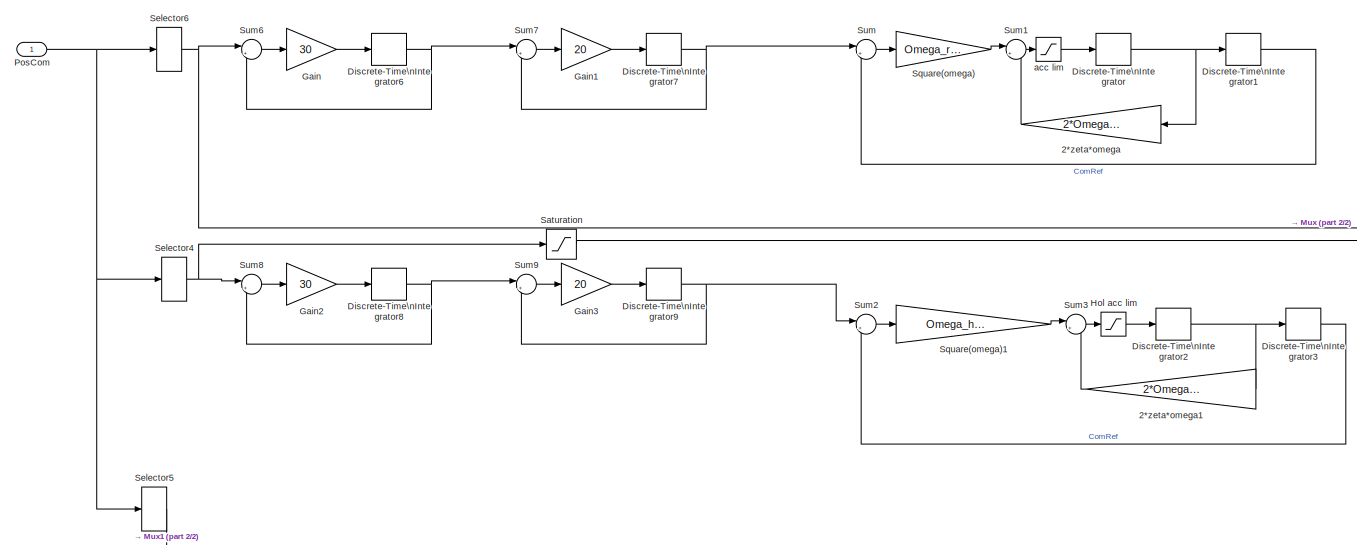
[diagram: PosRefSystem - part 1/2, most of the canvas]
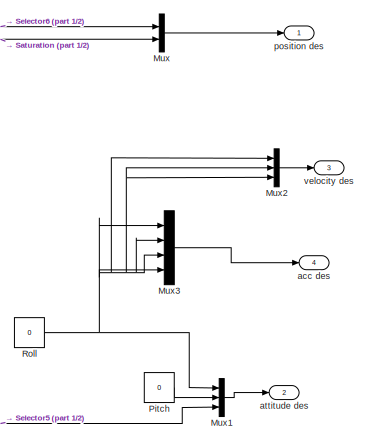
[diagram: PosRefSystem - part 2/2, middle right region]
BLOCK [SubSystem] PosRefSystem
  FunctionWithSeparateData = off
  MaskHideContents = off
  MinAlgLoopOccurrences = off
  Opaque = off
  Ports = [1, 4]
  PropExecContextOutsideSubsystem = off
  RTWSystemCode = Auto
  RequestExecContextInheritance = off
  SID = 100
BLOCK [Reference] PosRefSystem with ref  REF=X330_Control/PosRefSystem
  Acc_Max = Q6_acc_max
  Acc_h_Max = Q6_acc_max_h
  Omega_h_r = Q6_Omega_r_h
  Omega_r = Q6_Omega_r
  Ports = [1, 4]
  SID = 1078
  SourceBlock = X330_Control/PosRefSystem
  Zeta_h_r = Q6_Zeta_r_h
  Zeta_r = Q6_Zeta_r
BLOCK [Gain] PosRefSystem/2*zeta*omega
  Gain = 2*Omega_r*Zeta_r
  OutDataTypeStr = Inherit: Inherit via internal rule
  ParamDataTypeStr = Inherit: Inherit via internal rule
  SID = 102
  SaturateOnIntegerOverflow = off
BLOCK [Gain] PosRefSystem/2*zeta*omega1
  Gain = 2*Omega_h_r*Zeta_h_r
  OutDataTypeStr = Inherit: Inherit via internal rule
  ParamDataTypeStr = Inherit: Inherit via internal rule
  SID = 103
  SaturateOnIntegerOverflow = off
BLOCK [DiscreteIntegrator] PosRefSystem/Discrete-Time\nIntegrator
  ICPrevOutput = DiscIntNeverNeededParam
  ICPrevScaledInput = DiscIntNeverNeededParam
  Ports = [1, 1]
  SID = 105
  SampleTime = -1
BLOCK [DiscreteIntegrator] PosRefSystem/Discrete-Time\nIntegrator1
  ICPrevOutput = DiscIntNeverNeededParam
  ICPrevScaledInput = DiscIntNeverNeededParam
  Ports = [1, 1]
  SID = 106
  SampleTime = -1
BLOCK [DiscreteIntegrator] PosRefSystem/Discrete-Time\nIntegrator2
  ICPrevOutput = DiscIntNeverNeededParam
  ICPrevScaledInput = DiscIntNeverNeededParam
  Ports = [1, 1]
  SID = 107
  SampleTime = -1
BLOCK [DiscreteIntegrator] PosRefSystem/Discrete-Time\nIntegrator3
  ICPrevOutput = DiscIntNeverNeededParam
  ICPrevScaledInput = DiscIntNeverNeededParam
  Ports = [1, 1]
  SID = 108
  SampleTime = -1
BLOCK [DiscreteIntegrator] PosRefSystem/Discrete-Time\nIntegrator6
  ICPrevOutput = DiscIntNeverNeededParam
  ICPrevScaledInput = DiscIntNeverNeededParam
  Ports = [1, 1]
  SID = 111
  SampleTime = -1
BLOCK [DiscreteIntegrator] PosRefSystem/Discrete-Time\nIntegrator7
  ICPrevOutput = DiscIntNeverNeededParam
  ICPrevScaledInput = DiscIntNeverNeededParam
  Ports = [1, 1]
  SID = 112
  SampleTime = -1
BLOCK [DiscreteIntegrator] PosRefSystem/Discrete-Time\nIntegrator8
  ICPrevOutput = DiscIntNeverNeededParam
  ICPrevScaledInput = DiscIntNeverNeededParam
  Ports = [1, 1]
  SID = 113
  SampleTime = -1
BLOCK [DiscreteIntegrator] PosRefSystem/Discrete-Time\nIntegrator9
  ICPrevOutput = DiscIntNeverNeededParam
  ICPrevScaledInput = DiscIntNeverNeededParam
  Ports = [1, 1]
  SID = 114
  SampleTime = -1
BLOCK [Gain] PosRefSystem/Gain
  Gain = 30
  OutDataTypeStr = Inherit: Inherit via internal rule
  ParamDataTypeStr = Inherit: Inherit via internal rule
  SID = 115
  SaturateOnIntegerOverflow = off
BLOCK [Gain] PosRefSystem/Gain1
  Gain = 20
  OutDataTypeStr = Inherit: Inherit via internal rule
  ParamDataTypeStr = Inherit: Inherit via internal rule
  SID = 116
  SaturateOnIntegerOverflow = off
BLOCK [Gain] PosRefSystem/Gain2
  Gain = 30
  OutDataTypeStr = Inherit: Inherit via internal rule
  ParamDataTypeStr = Inherit: Inherit via internal rule
  SID = 117
  SaturateOnIntegerOverflow = off
BLOCK [Gain] PosRefSystem/Gain3
  Gain = 20
  OutDataTypeStr = Inherit: Inherit via internal rule
  ParamDataTypeStr = Inherit: Inherit via internal rule
  SID = 118
  SaturateOnIntegerOverflow = off
BLOCK [Saturate] PosRefSystem/Hol acc lim
  InputPortMap = u0
  LowerLimit = -Acc_h_Max
  Ports = [1, 1]
  SID = 119
  UpperLimit = Acc_h_Max
BLOCK [Mux] PosRefSystem/Mux
  DisplayOption = bar
  Inputs = 2
  Ports = [2, 1]
  SID = 120
BLOCK [Mux] PosRefSystem/Mux1
  DisplayOption = bar
  Inputs = 3
  Ports = [3, 1]
  SID = 121
BLOCK [Mux] PosRefSystem/Mux2
  DisplayOption = bar
  Inputs = 3
  Ports = [3, 1]
  SID = 122
BLOCK [Mux] PosRefSystem/Mux3
  DisplayOption = bar
  Ports = [4, 1]
  SID = 123
BLOCK [Constant] PosRefSystem/Pitch
  SID = 124
  SampleTime = 0.02
  Value = 0
BLOCK [Inport] PosRefSystem/PosCom
  IconDisplay = Port number
  SID = 101
BLOCK [Constant] PosRefSystem/Roll
  SID = 125
  SampleTime = 0.02
  Value = 0
BLOCK [Saturate] PosRefSystem/Saturation
  InputPortMap = u0
  LowerLimit = -2.5
  Ports = [1, 1]
  SID = 1087
BLOCK [Selector] PosRefSystem/Selector4
  IndexOptions = Index vector (dialog)
  Indices = [3]
  InputPortWidth = 4
  OutputSizes = 1
  Ports = [1, 1]
  SID = 126
BLOCK [Selector] PosRefSystem/Selector5
  IndexOptions = Index vector (dialog)
  Indices = [4]
  InputPortWidth = 4
  OutputSizes = 1
  Ports = [1, 1]
  SID = 127
BLOCK [Selector] PosRefSystem/Selector6
  IndexOptions = Index vector (dialog)
  Indices = [1 2]
  InputPortWidth = 4
  OutputSizes = 1
  Ports = [1, 1]
  SID = 128
BLOCK [Gain] PosRefSystem/Square(omega)
  Gain = Omega_r^2
  OutDataTypeStr = Inherit: Inherit via internal rule
  ParamDataTypeStr = Inherit: Inherit via internal rule
  SID = 129
  SaturateOnIntegerOverflow = off
BLOCK [Gain] PosRefSystem/Square(omega)1
  Gain = Omega_h_r^2
  OutDataTypeStr = Inherit: Inherit via internal rule
  ParamDataTypeStr = Inherit: Inherit via internal rule
  SID = 130
  SaturateOnIntegerOverflow = off
BLOCK [Sum] PosRefSystem/Sum
  IconShape = round
  InputSameDT = off
  Inputs = |+-
  OutDataTypeStr = Inherit: Inherit via internal rule
  Ports = [2, 1]
  SID = 132
  SaturateOnIntegerOverflow = off
BLOCK [Sum] PosRefSystem/Sum1
  IconShape = round
  InputSameDT = off
  Inputs = |+-
  OutDataTypeStr = Inherit: Inherit via internal rule
  Ports = [2, 1]
  SID = 133
  SaturateOnIntegerOverflow = off
BLOCK [Sum] PosRefSystem/Sum2
  IconShape = round
  InputSameDT = off
  Inputs = |+-
  OutDataTypeStr = Inherit: Inherit via internal rule
  Ports = [2, 1]
  SID = 134
  SaturateOnIntegerOverflow = off
BLOCK [Sum] PosRefSystem/Sum3
  IconShape = round
  InputSameDT = off
  Inputs = |+-
  OutDataTypeStr = Inherit: Inherit via internal rule
  Ports = [2, 1]
  SID = 135
  SaturateOnIntegerOverflow = off
BLOCK [Sum] PosRefSystem/Sum6
  IconShape = round
  InputSameDT = off
  Inputs = |+-
  OutDataTypeStr = Inherit: Inherit via internal rule
  Ports = [2, 1]
  SID = 138
  SaturateOnIntegerOverflow = off
BLOCK [Sum] PosRefSystem/Sum7
  IconShape = round
  InputSameDT = off
  Inputs = |+-
  OutDataTypeStr = Inherit: Inherit via internal rule
  Ports = [2, 1]
  SID = 139
  SaturateOnIntegerOverflow = off
BLOCK [Sum] PosRefSystem/Sum8
  IconShape = round
  InputSameDT = off
  Inputs = |+-
  OutDataTypeStr = Inherit: Inherit via internal rule
  Ports = [2, 1]
  SID = 140
  SaturateOnIntegerOverflow = off
BLOCK [Sum] PosRefSystem/Sum9
  IconShape = round
  InputSameDT = off
  Inputs = |+-
  OutDataTypeStr = Inherit: Inherit via internal rule
  Ports = [2, 1]
  SID = 141
  SaturateOnIntegerOverflow = off
BLOCK [Outport] PosRefSystem/acc des
  IconDisplay = Port number
  Port = 4
  SID = 146
BLOCK [Saturate] PosRefSystem/acc lim
  InputPortMap = u0
  LowerLimit = -Acc_Max
  Ports = [1, 1]
  SID = 142
  UpperLimit = Acc_Max
BLOCK [Outport] PosRefSystem/attitude des
  IconDisplay = Port number
  Port = 2
  SID = 144
BLOCK [Outport] PosRefSystem/position des
  IconDisplay = Port number
  SID = 143
BLOCK [Outport] PosRefSystem/velocity des
  IconDisplay = Port number
  Port = 3
  SID = 145
BLOCK [SubSystem] Vicon Filter
  FunctionWithSeparateData = off
  MaskHideContents = off
  MinAlgLoopOccurrences = off
  Opaque = off
  Ports = [1, 1]
  PropExecContextOutsideSubsystem = off
  RTWSystemCode = Auto
  RequestExecContextInheritance = off
  SID = 179
BLOCK [BusCreator] Vicon Filter/Bus\nCreator7
  DisplayOption = bar
  Ports = [4, 1]
  SID = 161
BLOCK [Demux] Vicon Filter/Demux7
  DisplayOption = bar
  Outputs = 6
  Ports = [1, 6]
  SID = 162
BLOCK [SubSystem] Vicon Filter/Filter7
  FunctionWithSeparateData = off
  MaskHideContents = off
  MinAlgLoopOccurrences = off
  Opaque = off
  Ports = [1, 2]
  PropExecContextOutsideSubsystem = off
  RTWSystemCode = Auto
  RequestExecContextInheritance = off
  SID = 1056
BLOCK [Outport] Vicon Filter/Filter7/Acc
  IconDisplay = Port number
  Port = 2
  SID = 1077
BLOCK [Inport] Vicon Filter/Filter7/In1
  IconDisplay = Port number
  SID = 1057
BLOCK [Reference] Vicon Filter/Filter7/Kalman Filter  REF=dspadpt3/Kalman Filter
  A = [1 sample_time_Vicon sample_time_Vicon*sample_time_Vicon/2 zeros(1,6);0 1 sample_time_Vicon zeros(1,6);0 0 1 zeros(1,6);0 0 0 1 sample_time_Vicon sample_time_Vicon*sample_time_Vicon/2 0 0 0;zeros(1,4) 1 sample_time_Vicon zeros(1,3);zeros(1,5) 1 zeros(1,3);zeros(1,6) 1 sample_time_Vicon sample_time_Vicon*sample_time_Vicon/2;zeros(1,7) 1 sample_time_Vicon;zeros(1,8) 1]
  H = [1 zeros(1,8); zeros(1,3) 1 zeros(1,5);zeros(1,6) 1 0 0]
  P = zeros(9)
  Ports = [1, 2]
  Q = diag([0 0.001 0.001 0 0.001 0.001 0 0.001 0.001])
  R = 0.001*eye(3)
  SID = 1062
  SourceBlock = dspadpt3/Kalman Filter
  SourceType = Kalman Filter
  X = zeros([9, 1])
  isOutputEstError = off
  isOutputEstMeasure = on
  isOutputEstState = on
  isOutputPrdError = off
  isOutputPrdMeasure = off
  isOutputPrdState = off
  isReset = on
  num_targets = 1
  sourceEnable = Always
  sourceMeasure = Specify via Dialog
BLOCK [Selector] Vicon Filter/Filter7/Selector5
  IndexOptions = Index vector (dialog)
  Indices = [2 5 8]
  InputPortWidth = 9
  OutputSizes = 1
  Ports = [1, 1]
  SID = 1069
BLOCK [Selector] Vicon Filter/Filter7/Selector6
  IndexOptions = Index vector (dialog)
  Indices = [3 6 9]
  InputPortWidth = 9
  OutputSizes = 1
  Ports = [1, 1]
  SID = 1070
BLOCK [Outport] Vicon Filter/Filter7/Vel
  IconDisplay = Port number
  SID = 1076
BLOCK [Mux] Vicon Filter/Mux20
  DisplayOption = bar
  Inputs = 3
  Ports = [3, 1]
  SID = 175
BLOCK [Mux] Vicon Filter/Mux21
  DisplayOption = bar
  Inputs = 3
  Ports = [3, 1]
  SID = 176
BLOCK [Outport] Vicon Filter/Vicon Filtered
  IconDisplay = Port number
  SID = 181
BLOCK [Inport] Vicon Filter/Vicon Raw
  IconDisplay = Port number
  SID = 180
BLOCK [SubSystem] Yaw Controller
  FunctionWithSeparateData = off
  MaskHideContents = off
  MinAlgLoopOccurrences = off
  Opaque = off
  Ports = [1, 1]
  PropExecContextOutsideSubsystem = off
  RTWSystemCode = Auto
  RequestExecContextInheritance = off
  SID = 46
BLOCK [BusSelector] Yaw Controller/Bus\nSelector1
  OutputSignals = Attitude,attitude des,rc
  Ports = [1, 3]
  SID = 48
BLOCK [Gain] Yaw Controller/Gain
  Gain = 180/pi
  OutDataTypeStr = Inherit: Inherit via internal rule
  ParamDataTypeStr = Inherit: Inherit via internal rule
  SID = 49
  SaturateOnIntegerOverflow = off
BLOCK [Gain] Yaw Controller/I Gain
  DisableCoverage = on
  Gain = 0
  OutDataTypeStr = double
  ParamDataTypeStr = double
  SID = 987
  SaturateOnIntegerOverflow = off
BLOCK [DiscreteIntegrator] Yaw Controller/Integrator
  DisableCoverage = on
  ExternalReset = level
  ICPrevOutput = DiscIntNeverNeededParam
  ICPrevScaledInput = DiscIntNeverNeededParam
  InitialConditionMode = State only (most efficient)
  IntegratorMethod = Integration: Trapezoidal
  OutDataTypeStr = double
  Ports = [2, 1]
  SID = 981
  SampleTime = -1
BLOCK [SubSystem] Yaw Controller/MATLAB Function
  ErrorFcn = Stateflow.Translate.translate
  FunctionWithSeparateData = off
  MaskHideContents = off
  MinAlgLoopOccurrences = off
  Opaque = off
  PermitHierarchicalResolution = ExplicitOnly
  Ports = [1, 1]
  PropExecContextOutsideSubsystem = off
  RTWSystemCode = Auto
  RequestExecContextInheritance = off
  SFBlockType = MATLAB Function
  SID = 51
  TreatAsAtomicUnit = on
BLOCK [Demux] Yaw Controller/MATLAB Function/ Demux 
  Outputs = 1
  Ports = [1, 1]
  SID = 51::2
BLOCK [S-Function] Yaw Controller/MATLAB Function/ SFunction 
  EnableBusSupport = off
  FunctionName = sf_sfun
  PortCounts = [1 2]
  Ports = [1, 2]
  SID = 51::6
  Tag = Stateflow S-Function X330_Control 1
BLOCK [Terminator] Yaw Controller/MATLAB Function/ Terminator 
  SID = 51::4
BLOCK [Inport] Yaw Controller/MATLAB Function/u
  IconDisplay = Port number
  SID = 51::1
BLOCK [Outport] Yaw Controller/MATLAB Function/y
  IconDisplay = Port number
  SID = 51::5
BLOCK [SubSystem] Yaw Controller/MATLAB Function1
  ErrorFcn = Stateflow.Translate.translate
  FunctionWithSeparateData = off
  MaskHideContents = off
  MinAlgLoopOccurrences = off
  Opaque = off
  PermitHierarchicalResolution = ExplicitOnly
  Ports = [1, 1]
  PropExecContextOutsideSubsystem = off
  RTWSystemCode = Auto
  RequestExecContextInheritance = off
  SFBlockType = MATLAB Function
  SID = 973
  TreatAsAtomicUnit = on
BLOCK [Demux] Yaw Controller/MATLAB Function1/ Demux 
  Outputs = 1
  Ports = [1, 1]
  SID = 973::2
BLOCK [S-Function] Yaw Controller/MATLAB Function1/ SFunction 
  EnableBusSupport = off
  FunctionName = sf_sfun
  PortCounts = [1 2]
  Ports = [1, 2]
  SID = 973::6
  Tag = Stateflow S-Function X330_Control 7
BLOCK [Terminator] Yaw Controller/MATLAB Function1/ Terminator 
  SID = 973::4
BLOCK [Inport] Yaw Controller/MATLAB Function1/u
  IconDisplay = Port number
  SID = 973::1
BLOCK [Outport] Yaw Controller/MATLAB Function1/y
  IconDisplay = Port number
  SID = 973::5
BLOCK [Gain] Yaw Controller/Proportional Gain
  DisableCoverage = on
  Gain = 3
  OutDataTypeStr = double
  ParamDataTypeStr = double
  SID = 986
  SaturateOnIntegerOverflow = off
BLOCK [Saturate] Yaw Controller/Saturation
  InputPortMap = u0
  LinearizeAsGain = off
  LowerLimit = -45*pi/180
  OutDataTypeStr = double
  Ports = [1, 1]
  SID = 983
  UpperLimit = 45*pi/180
BLOCK [Selector] Yaw Controller/Selector5
  IndexOptions = Index vector (dialog)
  Indices = [3]
  InputPortWidth = 3
  OutputSizes = 1
  Ports = [1, 1]
  SID = 52
BLOCK [Selector] Yaw Controller/Selector6
  IndexOptions = Index vector (dialog)
  Indices = [3]
  InputPortWidth = 3
  OutputSizes = 1
  Ports = [1, 1]
  SID = 53
BLOCK [Selector] Yaw Controller/Selector7
  IndexOptions = Index vector (dialog)
  Indices = [7]
  InputPortWidth = 8
  OutputSizes = 1
  Ports = [1, 1]
  SID = 974
BLOCK [Sum] Yaw Controller/Sum
  IconShape = round
  InputSameDT = off
  Inputs = |++
  OutDataTypeStr = Inherit: Inherit via internal rule
  Ports = [2, 1]
  SID = 991
  SaturateOnIntegerOverflow = off
BLOCK [Sum] Yaw Controller/Sum1
  IconShape = round
  InputSameDT = off
  Inputs = |-+
  OutDataTypeStr = Inherit: Inherit via internal rule
  Ports = [2, 1]
  SID = 55
  SaturateOnIntegerOverflow = off
BLOCK [Inport] Yaw Controller/UAV Bus
  IconDisplay = Port number
  SID = 47
BLOCK [Outport] Yaw Controller/Yaw rate des
  IconDisplay = Port number
  SID = 56
ANNOTATION Axi Vertical Controller\nAxiMotor + APC Prop: Manual Thrust
ANNOTATION HanMa Vertical Controller\nTunigy Motor + Plastic Prop: Manual Thrust
ANNOTATION NN For Height\nAxiMotor + APC Prop: Manual Thrust
ANNOTATION NN For Height\nTunigy Motor + Plastic Prop: Manual Thrust
LINE Axi Vertical Controller\nAxiMotor + APC Prop/Bus\nSelector3:1 -> Axi Vertical Controller\nAxiMotor + APC Prop/Selector7:1
LINE Axi Vertical Controller\nAxiMotor + APC Prop/Bus\nSelector:1 -> Axi Vertical Controller\nAxiMotor + APC Prop/Selector4:1
LINE Axi Vertical Controller\nAxiMotor + APC Prop/Bus\nSelector:2 -> Axi Vertical Controller\nAxiMotor + APC Prop/Selector1:1
LINE Axi Vertical Controller\nAxiMotor + APC Prop/Bus\nSelector:3 -> Axi Vertical Controller\nAxiMotor + APC Prop/Bus\nSelector3:1
LINE Axi Vertical Controller\nAxiMotor + APC Prop/Bus\nSelector:4 -> Axi Vertical Controller\nAxiMotor + APC Prop/Selector3:1
LINE Axi Vertical Controller\nAxiMotor + APC Prop/Bus\nSelector:5 -> Axi Vertical Controller\nAxiMotor + APC Prop/Selector5:1
LINE Axi Vertical Controller\nAxiMotor + APC Prop/Bus\nSelector:6 -> Axi Vertical Controller\nAxiMotor + APC Prop/Selector6:1
LINE Axi Vertical Controller\nAxiMotor + APC Prop/Hover Throttle:1 -> Axi Vertical Controller\nAxiMotor + APC Prop/Verticall Pos Controller:4
LINE Axi Vertical Controller\nAxiMotor + APC Prop/MATLAB Function/ Demux :1 -> Axi Vertical Controller\nAxiMotor + APC Prop/MATLAB Function/ Terminator :1
LINE Axi Vertical Controller\nAxiMotor + APC Prop/MATLAB Function/ SFunction :1 -> Axi Vertical Controller\nAxiMotor + APC Prop/MATLAB Function/ Demux :1
LINE Axi Vertical Controller\nAxiMotor + APC Prop/MATLAB Function/ SFunction :2 -> Axi Vertical Controller\nAxiMotor + APC Prop/MATLAB Function/y:1
LINE Axi Vertical Controller\nAxiMotor + APC Prop/MATLAB Function/u:1 -> Axi Vertical Controller\nAxiMotor + APC Prop/MATLAB Function/ SFunction :1
LINE Axi Vertical Controller\nAxiMotor + APC Prop/MATLAB Function:1 -> Axi Vertical Controller\nAxiMotor + APC Prop/Verticall Pos Controller:2
LINE Axi Vertical Controller\nAxiMotor + APC Prop/Selector1:1 -> Axi Vertical Controller\nAxiMotor + APC Prop/Sum:2
LINE Axi Vertical Controller\nAxiMotor + APC Prop/Selector3:1 -> Axi Vertical Controller\nAxiMotor + APC Prop/Sum1:1
LINE Axi Vertical Controller\nAxiMotor + APC Prop/Selector4:1 -> Axi Vertical Controller\nAxiMotor + APC Prop/Sum:1
LINE Axi Vertical Controller\nAxiMotor + APC Prop/Selector5:1 -> Axi Vertical Controller\nAxiMotor + APC Prop/Sum1:2
LINE Axi Vertical Controller\nAxiMotor + APC Prop/Selector6:1 -> Axi Vertical Controller\nAxiMotor + APC Prop/Verticall Pos Controller:5
LINE Axi Vertical Controller\nAxiMotor + APC Prop/Selector7:1 -> Axi Vertical Controller\nAxiMotor + APC Prop/MATLAB Function:1
LINE Axi Vertical Controller\nAxiMotor + APC Prop/Sum1:1 -> Axi Vertical Controller\nAxiMotor + APC Prop/Verticall Pos Controller:3
LINE Axi Vertical Controller\nAxiMotor + APC Prop/Sum:1 -> Axi Vertical Controller\nAxiMotor + APC Prop/Verticall Pos Controller:1
LINE Axi Vertical Controller\nAxiMotor + APC Prop/UAV bus:1 -> Axi Vertical Controller\nAxiMotor + APC Prop/Bus\nSelector:1
LINE Axi Vertical Controller\nAxiMotor + APC Prop/Verticall Pos Controller/Acc des:1 -> Axi Vertical Controller\nAxiMotor + APC Prop/Verticall Pos Controller/Sum1:4
LINE Axi Vertical Controller\nAxiMotor + APC Prop/Verticall Pos Controller/D Gain:1 -> Axi Vertical Controller\nAxiMotor + APC Prop/Verticall Pos Controller/Sum1:3
LINE Axi Vertical Controller\nAxiMotor + APC Prop/Verticall Pos Controller/Force --> Control:1 -> Axi Vertical Controller\nAxiMotor + APC Prop/Verticall Pos Controller/T  Commands [0, 1]:1
LINE Axi Vertical Controller\nAxiMotor + APC Prop/Verticall Pos Controller/Hover Throttle:1 -> Axi Vertical Controller\nAxiMotor + APC Prop/Verticall Pos Controller/Sum2:2
LINE Axi Vertical Controller\nAxiMotor + APC Prop/Verticall Pos Controller/Integral Gain:1 -> Axi Vertical Controller\nAxiMotor + APC Prop/Verticall Pos Controller/Integrator:1
LINE Axi Vertical Controller\nAxiMotor + APC Prop/Verticall Pos Controller/Integrator:1 -> Axi Vertical Controller\nAxiMotor + APC Prop/Verticall Pos Controller/Sum1:2
LINE Axi Vertical Controller\nAxiMotor + APC Prop/Verticall Pos Controller/Mass:1 -> Axi Vertical Controller\nAxiMotor + APC Prop/Verticall Pos Controller/Force --> Control:1
LINE Axi Vertical Controller\nAxiMotor + APC Prop/Verticall Pos Controller/Mux:1 -> Axi Vertical Controller\nAxiMotor + APC Prop/Verticall Pos Controller/Total Acc des:1
NET Axi Vertical Controller\nAxiMotor + APC Prop/Verticall Pos Controller/Pos Error:1 -> Axi Vertical Controller\nAxiMotor + APC Prop/Verticall Pos Controller/Integral Gain:1, Axi Vertical Controller\nAxiMotor + APC Prop/Verticall Pos Controller/Proportional Gain:1
LINE Axi Vertical Controller\nAxiMotor + APC Prop/Verticall Pos Controller/Proportional Gain:1 -> Axi Vertical Controller\nAxiMotor + APC Prop/Verticall Pos Controller/Sum1:1
LINE Axi Vertical Controller\nAxiMotor + APC Prop/Verticall Pos Controller/Reset:1 -> Axi Vertical Controller\nAxiMotor + APC Prop/Verticall Pos Controller/Integrator:2
LINE Axi Vertical Controller\nAxiMotor + APC Prop/Verticall Pos Controller/Sum1:1 -> Axi Vertical Controller\nAxiMotor + APC Prop/Verticall Pos Controller/Sum2:1
NET Axi Vertical Controller\nAxiMotor + APC Prop/Verticall Pos Controller/Sum2:1 -> Axi Vertical Controller\nAxiMotor + APC Prop/Verticall Pos Controller/Mass:1, Axi Vertical Controller\nAxiMotor + APC Prop/Verticall Pos Controller/Mux:1
LINE Axi Vertical Controller\nAxiMotor + APC Prop/Verticall Pos Controller/Vel Error:1 -> Axi Vertical Controller\nAxiMotor + APC Prop/Verticall Pos Controller/D Gain:1
LINE Axi Vertical Controller\nAxiMotor + APC Prop/Verticall Pos Controller/XY_Acc_d:1 -> Axi Vertical Controller\nAxiMotor + APC Prop/Verticall Pos Controller/Mux:2
LINE Axi Vertical Controller\nAxiMotor + APC Prop/Verticall Pos Controller:1 -> Axi Vertical Controller\nAxiMotor + APC Prop/T:1
LINE Axi Vertical Controller\nAxiMotor + APC Prop/XY_Acc_d:1 -> Axi Vertical Controller\nAxiMotor + APC Prop/Verticall Pos Controller:6
LINE HanMa Vertical Controller\nTunigy Motor + Plastic Prop/Bus\nSelector3:1 -> HanMa Vertical Controller\nTunigy Motor + Plastic Prop/Selector2:1
LINE HanMa Vertical Controller\nTunigy Motor + Plastic Prop/Bus\nSelector:1 -> HanMa Vertical Controller\nTunigy Motor + Plastic Prop/Selector4:1
LINE HanMa Vertical Controller\nTunigy Motor + Plastic Prop/Bus\nSelector:2 -> HanMa Vertical Controller\nTunigy Motor + Plastic Prop/Selector1:1
LINE HanMa Vertical Controller\nTunigy Motor + Plastic Prop/Bus\nSelector:3 -> HanMa Vertical Controller\nTunigy Motor + Plastic Prop/Bus\nSelector3:1
LINE HanMa Vertical Controller\nTunigy Motor + Plastic Prop/Bus\nSelector:4 -> HanMa Vertical Controller\nTunigy Motor + Plastic Prop/Selector3:1
LINE HanMa Vertical Controller\nTunigy Motor + Plastic Prop/Bus\nSelector:5 -> HanMa Vertical Controller\nTunigy Motor + Plastic Prop/Selector5:1
LINE HanMa Vertical Controller\nTunigy Motor + Plastic Prop/Bus\nSelector:6 -> HanMa Vertical Controller\nTunigy Motor + Plastic Prop/Selector6:1
LINE HanMa Vertical Controller\nTunigy Motor + Plastic Prop/Hover Throttle:1 -> HanMa Vertical Controller\nTunigy Motor + Plastic Prop/Verticall Pos Controller:4
LINE HanMa Vertical Controller\nTunigy Motor + Plastic Prop/MATLAB Function/ Demux :1 -> HanMa Vertical Controller\nTunigy Motor + Plastic Prop/MATLAB Function/ Terminator :1
LINE HanMa Vertical Controller\nTunigy Motor + Plastic Prop/MATLAB Function/ SFunction :1 -> HanMa Vertical Controller\nTunigy Motor + Plastic Prop/MATLAB Function/ Demux :1
LINE HanMa Vertical Controller\nTunigy Motor + Plastic Prop/MATLAB Function/ SFunction :2 -> HanMa Vertical Controller\nTunigy Motor + Plastic Prop/MATLAB Function/y:1
LINE HanMa Vertical Controller\nTunigy Motor + Plastic Prop/MATLAB Function/u:1 -> HanMa Vertical Controller\nTunigy Motor + Plastic Prop/MATLAB Function/ SFunction :1
LINE HanMa Vertical Controller\nTunigy Motor + Plastic Prop/MATLAB Function:1 -> HanMa Vertical Controller\nTunigy Motor + Plastic Prop/Verticall Pos Controller:2
LINE HanMa Vertical Controller\nTunigy Motor + Plastic Prop/Selector1:1 -> HanMa Vertical Controller\nTunigy Motor + Plastic Prop/Sum:2
LINE HanMa Vertical Controller\nTunigy Motor + Plastic Prop/Selector2:1 -> HanMa Vertical Controller\nTunigy Motor + Plastic Prop/MATLAB Function:1
LINE HanMa Vertical Controller\nTunigy Motor + Plastic Prop/Selector3:1 -> HanMa Vertical Controller\nTunigy Motor + Plastic Prop/Sum1:1
LINE HanMa Vertical Controller\nTunigy Motor + Plastic Prop/Selector4:1 -> HanMa Vertical Controller\nTunigy Motor + Plastic Prop/Sum:1
LINE HanMa Vertical Controller\nTunigy Motor + Plastic Prop/Selector5:1 -> HanMa Vertical Controller\nTunigy Motor + Plastic Prop/Sum1:2
LINE HanMa Vertical Controller\nTunigy Motor + Plastic Prop/Selector6:1 -> HanMa Vertical Controller\nTunigy Motor + Plastic Prop/Verticall Pos Controller:5
LINE HanMa Vertical Controller\nTunigy Motor + Plastic Prop/Sum1:1 -> HanMa Vertical Controller\nTunigy Motor + Plastic Prop/Verticall Pos Controller:3
LINE HanMa Vertical Controller\nTunigy Motor + Plastic Prop/Sum:1 -> HanMa Vertical Controller\nTunigy Motor + Plastic Prop/Verticall Pos Controller:1
LINE HanMa Vertical Controller\nTunigy Motor + Plastic Prop/UAV bus:1 -> HanMa Vertical Controller\nTunigy Motor + Plastic Prop/Bus\nSelector:1
LINE HanMa Vertical Controller\nTunigy Motor + Plastic Prop/Verticall Pos Controller/Acc des:1 -> HanMa Vertical Controller\nTunigy Motor + Plastic Prop/Verticall Pos Controller/Sum1:4
LINE HanMa Vertical Controller\nTunigy Motor + Plastic Prop/Verticall Pos Controller/D Gain:1 -> HanMa Vertical Controller\nTunigy Motor + Plastic Prop/Verticall Pos Controller/Sum1:3
LINE HanMa Vertical Controller\nTunigy Motor + Plastic Prop/Verticall Pos Controller/Force --> Control:1 -> HanMa Vertical Controller\nTunigy Motor + Plastic Prop/Verticall Pos Controller/T  Commands [0, 1]:1
LINE HanMa Vertical Controller\nTunigy Motor + Plastic Prop/Verticall Pos Controller/Hover Throttle:1 -> HanMa Vertical Controller\nTunigy Motor + Plastic Prop/Verticall Pos Controller/Sum2:2
LINE HanMa Vertical Controller\nTunigy Motor + Plastic Prop/Verticall Pos Controller/Integral Gain:1 -> HanMa Vertical Controller\nTunigy Motor + Plastic Prop/Verticall Pos Controller/Integrator:1
LINE HanMa Vertical Controller\nTunigy Motor + Plastic Prop/Verticall Pos Controller/Integrator:1 -> HanMa Vertical Controller\nTunigy Motor + Plastic Prop/Verticall Pos Controller/Sum1:2
LINE HanMa Vertical Controller\nTunigy Motor + Plastic Prop/Verticall Pos Controller/Mass:1 -> HanMa Vertical Controller\nTunigy Motor + Plastic Prop/Verticall Pos Controller/Force --> Control:1
LINE HanMa Vertical Controller\nTunigy Motor + Plastic Prop/Verticall Pos Controller/Mux:1 -> HanMa Vertical Controller\nTunigy Motor + Plastic Prop/Verticall Pos Controller/Total Acc des:1
NET HanMa Vertical Controller\nTunigy Motor + Plastic Prop/Verticall Pos Controller/Pos Error:1 -> HanMa Vertical Controller\nTunigy Motor + Plastic Prop/Verticall Pos Controller/Integral Gain:1, HanMa Vertical Controller\nTunigy Motor + Plastic Prop/Verticall Pos Controller/Proportional Gain:1
LINE HanMa Vertical Controller\nTunigy Motor + Plastic Prop/Verticall Pos Controller/Proportional Gain:1 -> HanMa Vertical Controller\nTunigy Motor + Plastic Prop/Verticall Pos Controller/Sum1:1
LINE HanMa Vertical Controller\nTunigy Motor + Plastic Prop/Verticall Pos Controller/Reset:1 -> HanMa Vertical Controller\nTunigy Motor + Plastic Prop/Verticall Pos Controller/Integrator:2
LINE HanMa Vertical Controller\nTunigy Motor + Plastic Prop/Verticall Pos Controller/Sum1:1 -> HanMa Vertical Controller\nTunigy Motor + Plastic Prop/Verticall Pos Controller/Sum2:1
NET HanMa Vertical Controller\nTunigy Motor + Plastic Prop/Verticall Pos Controller/Sum2:1 -> HanMa Vertical Controller\nTunigy Motor + Plastic Prop/Verticall Pos Controller/Mass:1, HanMa Vertical Controller\nTunigy Motor + Plastic Prop/Verticall Pos Controller/Mux:1
LINE HanMa Vertical Controller\nTunigy Motor + Plastic Prop/Verticall Pos Controller/Vel Error:1 -> HanMa Vertical Controller\nTunigy Motor + Plastic Prop/Verticall Pos Controller/D Gain:1
LINE HanMa Vertical Controller\nTunigy Motor + Plastic Prop/Verticall Pos Controller/XY_Acc_d:1 -> HanMa Vertical Controller\nTunigy Motor + Plastic Prop/Verticall Pos Controller/Mux:2
LINE HanMa Vertical Controller\nTunigy Motor + Plastic Prop/Verticall Pos Controller:1 -> HanMa Vertical Controller\nTunigy Motor + Plastic Prop/T:1
LINE HanMa Vertical Controller\nTunigy Motor + Plastic Prop/XY_Acc_d:1 -> HanMa Vertical Controller\nTunigy Motor + Plastic Prop/Verticall Pos Controller:6
LINE Horizontal Pos controller/Horizontal Position Controller/Bus\nSelector3:1 -> Horizontal Pos controller/Horizontal Position Controller/Selector9:1
LINE Horizontal Pos controller/Horizontal Position Controller/Bus\nSelector:1 -> Horizontal Pos controller/Horizontal Position Controller/Selector1:1
LINE Horizontal Pos controller/Horizontal Position Controller/Bus\nSelector:2 -> Horizontal Pos controller/Horizontal Position Controller/Selector2:1
LINE Horizontal Pos controller/Horizontal Position Controller/Bus\nSelector:3 -> Horizontal Pos controller/Horizontal Position Controller/Bus\nSelector3:1
LINE Horizontal Pos controller/Horizontal Position Controller/Bus\nSelector:4 -> Horizontal Pos controller/Horizontal Position Controller/Selector6:1
LINE Horizontal Pos controller/Horizontal Position Controller/Bus\nSelector:6 -> Horizontal Pos controller/Horizontal Position Controller/Selector5:1
NET Horizontal Pos controller/Horizontal Position Controller/Constant:1 -> Horizontal Pos controller/Horizontal Position Controller/Horizontal Pos Controller:4, Horizontal Pos controller/Horizontal Position Controller/Sum1:2
LINE Horizontal Pos controller/Horizontal Position Controller/Fcn1:1 -> Horizontal Pos controller/Horizontal Position Controller/Mux1:1
LINE Horizontal Pos controller/Horizontal Position Controller/Fcn2:1 -> Horizontal Pos controller/Horizontal Position Controller/Des Horizontal Acc:1
LINE Horizontal Pos controller/Horizontal Position Controller/Fcn:1 -> Horizontal Pos controller/Horizontal Position Controller/Mux1:2
LINE Horizontal Pos controller/Horizontal Position Controller/Horizontal Pos Controller/Acc des:1 -> Horizontal Pos controller/Horizontal Position Controller/Horizontal Pos Controller/Sum1:4
LINE Horizontal Pos controller/Horizontal Position Controller/Horizontal Pos Controller/D Gain:1 -> Horizontal Pos controller/Horizontal Position Controller/Horizontal Pos Controller/Sum1:3
LINE Horizontal Pos controller/Horizontal Position Controller/Horizontal Pos Controller/Integral Gain:1 -> Horizontal Pos controller/Horizontal Position Controller/Horizontal Pos Controller/Integrator:1
LINE Horizontal Pos controller/Horizontal Position Controller/Horizontal Pos Controller/Integrator:1 -> Horizontal Pos controller/Horizontal Position Controller/Horizontal Pos Controller/Sum1:2
NET Horizontal Pos controller/Horizontal Position Controller/Horizontal Pos Controller/Pos Error:1 -> Horizontal Pos controller/Horizontal Position Controller/Horizontal Pos Controller/Integral Gain:1, Horizontal Pos controller/Horizontal Position Controller/Horizontal Pos Controller/Proportional Gain:1
LINE Horizontal Pos controller/Horizontal Position Controller/Horizontal Pos Controller/Proportional Gain:1 -> Horizontal Pos controller/Horizontal Position Controller/Horizontal Pos Controller/Sum1:1
LINE Horizontal Pos controller/Horizontal Position Controller/Horizontal Pos Controller/Reset:1 -> Horizontal Pos controller/Horizontal Position Controller/Horizontal Pos Controller/Integrator:2
LINE Horizontal Pos controller/Horizontal Position Controller/Horizontal Pos Controller/Sum1:1 -> Horizontal Pos controller/Horizontal Position Controller/Horizontal Pos Controller/Global Commands:1
LINE Horizontal Pos controller/Horizontal Position Controller/Horizontal Pos Controller/Vel Error:1 -> Horizontal Pos controller/Horizontal Position Controller/Horizontal Pos Controller/D Gain:1
NET Horizontal Pos controller/Horizontal Position Controller/Horizontal Pos Controller:1 -> Horizontal Pos controller/Horizontal Position Controller/Fcn2:1, Horizontal Pos controller/Horizontal Position Controller/Selector3:1, Horizontal Pos controller/Horizontal Position Controller/Selector4:1
LINE Horizontal Pos controller/Horizontal Position Controller/Linearization:1 -> Horizontal Pos controller/Horizontal Position Controller/Saturation:1
LINE Horizontal Pos controller/Horizontal Position Controller/MATLAB Function/ Demux :1 -> Horizontal Pos controller/Horizontal Position Controller/MATLAB Function/ Terminator :1
LINE Horizontal Pos controller/Horizontal Position Controller/MATLAB Function/ SFunction :1 -> Horizontal Pos controller/Horizontal Position Controller/MATLAB Function/ Demux :1
LINE Horizontal Pos controller/Horizontal Position Controller/MATLAB Function/ SFunction :2 -> Horizontal Pos controller/Horizontal Position Controller/MATLAB Function/y:1
LINE Horizontal Pos controller/Horizontal Position Controller/MATLAB Function/u:1 -> Horizontal Pos controller/Horizontal Position Controller/MATLAB Function/ SFunction :1
LINE Horizontal Pos controller/Horizontal Position Controller/MATLAB Function:1 -> Horizontal Pos controller/Horizontal Position Controller/Horizontal Pos Controller:2
LINE Horizontal Pos controller/Horizontal Position Controller/Mux1:1 -> Horizontal Pos controller/Horizontal Position Controller/Linearization:1
NET Horizontal Pos controller/Horizontal Position Controller/Mux:1 -> Horizontal Pos controller/Horizontal Position Controller/Fcn1:1, Horizontal Pos controller/Horizontal Position Controller/Fcn:1
LINE Horizontal Pos controller/Horizontal Position Controller/Saturation1:1 -> Horizontal Pos controller/Horizontal Position Controller/Horizontal Pos Controller:1
LINE Horizontal Pos controller/Horizontal Position Controller/Saturation:1 -> Horizontal Pos controller/Horizontal Position Controller/RP Cmd (Radian):1
LINE Horizontal Pos controller/Horizontal Position Controller/Selector1:1 -> Horizontal Pos controller/Horizontal Position Controller/Sum:1
LINE Horizontal Pos controller/Horizontal Position Controller/Selector2:1 -> Horizontal Pos controller/Horizontal Position Controller/Sum:2
LINE Horizontal Pos controller/Horizontal Position Controller/Selector3:1 -> Horizontal Pos controller/Horizontal Position Controller/Mux:1
LINE Horizontal Pos controller/Horizontal Position Controller/Selector4:1 -> Horizontal Pos controller/Horizontal Position Controller/Mux:2
LINE Horizontal Pos controller/Horizontal Position Controller/Selector5:1 -> Horizontal Pos controller/Horizontal Position Controller/Mux:3
LINE Horizontal Pos controller/Horizontal Position Controller/Selector6:1 -> Horizontal Pos controller/Horizontal Position Controller/Sum1:1
LINE Horizontal Pos controller/Horizontal Position Controller/Selector9:1 -> Horizontal Pos controller/Horizontal Position Controller/MATLAB Function:1
LINE Horizontal Pos controller/Horizontal Position Controller/Sum1:1 -> Horizontal Pos controller/Horizontal Position Controller/Horizontal Pos Controller:3
LINE Horizontal Pos controller/Horizontal Position Controller/Sum:1 -> Horizontal Pos controller/Horizontal Position Controller/Saturation1:1
LINE Horizontal Pos controller/Horizontal Position Controller/UAV Bus:1 -> Horizontal Pos controller/Horizontal Position Controller/Bus\nSelector:1
LINE Horizontal Pos controller/Horizontal Position Controller:1 -> Horizontal Pos controller/RP Cmd:1
LINE Horizontal Pos controller/UAV Bus:1 -> Horizontal Pos controller/Horizontal Position Controller:1
NET NN For Height\nAxiMotor + APC Prop/Bus\nSelector3:1 -> NN For Height\nAxiMotor + APC Prop/Selector2:1, NN For Height\nAxiMotor + APC Prop/Verticall Pos Controller:9
LINE NN For Height\nAxiMotor + APC Prop/Bus\nSelector:1 -> NN For Height\nAxiMotor + APC Prop/Selector4:1
LINE NN For Height\nAxiMotor + APC Prop/Bus\nSelector:2 -> NN For Height\nAxiMotor + APC Prop/Selector1:1
LINE NN For Height\nAxiMotor + APC Prop/Bus\nSelector:3 -> NN For Height\nAxiMotor + APC Prop/Bus\nSelector3:1
LINE NN For Height\nAxiMotor + APC Prop/Bus\nSelector:4 -> NN For Height\nAxiMotor + APC Prop/Selector3:1
LINE NN For Height\nAxiMotor + APC Prop/Bus\nSelector:5 -> NN For Height\nAxiMotor + APC Prop/Selector5:1
LINE NN For Height\nAxiMotor + APC Prop/Bus\nSelector:6 -> NN For Height\nAxiMotor + APC Prop/Selector6:1
LINE NN For Height\nAxiMotor + APC Prop/Hover Throttle:1 -> NN For Height\nAxiMotor + APC Prop/Verticall Pos Controller:4
LINE NN For Height\nAxiMotor + APC Prop/MATLAB Function/ Demux :1 -> NN For Height\nAxiMotor + APC Prop/MATLAB Function/ Terminator :1
LINE NN For Height\nAxiMotor + APC Prop/MATLAB Function/ SFunction :1 -> NN For Height\nAxiMotor + APC Prop/MATLAB Function/ Demux :1
LINE NN For Height\nAxiMotor + APC Prop/MATLAB Function/ SFunction :2 -> NN For Height\nAxiMotor + APC Prop/MATLAB Function/y:1
LINE NN For Height\nAxiMotor + APC Prop/MATLAB Function/u:1 -> NN For Height\nAxiMotor + APC Prop/MATLAB Function/ SFunction :1
LINE NN For Height\nAxiMotor + APC Prop/MATLAB Function:1 -> NN For Height\nAxiMotor + APC Prop/Verticall Pos Controller:2
NET NN For Height\nAxiMotor + APC Prop/Selector1:1 -> NN For Height\nAxiMotor + APC Prop/Sum:2, NN For Height\nAxiMotor + APC Prop/Verticall Pos Controller:7
LINE NN For Height\nAxiMotor + APC Prop/Selector2:1 -> NN For Height\nAxiMotor + APC Prop/MATLAB Function:1
LINE NN For Height\nAxiMotor + APC Prop/Selector3:1 -> NN For Height\nAxiMotor + APC Prop/Sum1:1
NET NN For Height\nAxiMotor + APC Prop/Selector4:1 -> NN For Height\nAxiMotor + APC Prop/Sum:1, NN For Height\nAxiMotor + APC Prop/Verticall Pos Controller:8
LINE NN For Height\nAxiMotor + APC Prop/Selector5:1 -> NN For Height\nAxiMotor + APC Prop/Sum1:2
LINE NN For Height\nAxiMotor + APC Prop/Selector6:1 -> NN For Height\nAxiMotor + APC Prop/Verticall Pos Controller:5
NET NN For Height\nAxiMotor + APC Prop/Sum1:1 -> NN For Height\nAxiMotor + APC Prop/Verticall Pos Controller:10, NN For Height\nAxiMotor + APC Prop/Verticall Pos Controller:3
LINE NN For Height\nAxiMotor + APC Prop/Sum:1 -> NN For Height\nAxiMotor + APC Prop/Verticall Pos Controller:1
LINE NN For Height\nAxiMotor + APC Prop/UAV bus:1 -> NN For Height\nAxiMotor + APC Prop/Bus\nSelector:1
LINE NN For Height\nAxiMotor + APC Prop/Verticall Pos Controller/Acc des:1 -> NN For Height\nAxiMotor + APC Prop/Verticall Pos Controller/Sum1:4
LINE NN For Height\nAxiMotor + APC Prop/Verticall Pos Controller/D Gain:1 -> NN For Height\nAxiMotor + APC Prop/Verticall Pos Controller/Sum1:3
LINE NN For Height\nAxiMotor + APC Prop/Verticall Pos Controller/Fcn1:1 -> NN For Height\nAxiMotor + APC Prop/Verticall Pos Controller/Level-2 M-file\nS-Function:4
LINE NN For Height\nAxiMotor + APC Prop/Verticall Pos Controller/Force --> Control1:1 -> NN For Height\nAxiMotor + APC Prop/Verticall Pos Controller/T  Commands [0, 1]:1
LINE NN For Height\nAxiMotor + APC Prop/Verticall Pos Controller/Height:1 -> NN For Height\nAxiMotor + APC Prop/Verticall Pos Controller/Level-2 M-file\nS-Function:2
LINE NN For Height\nAxiMotor + APC Prop/Verticall Pos Controller/Height\nRef:1 -> NN For Height\nAxiMotor + APC Prop/Verticall Pos Controller/Level-2 M-file\nS-Function:1
LINE NN For Height\nAxiMotor + APC Prop/Verticall Pos Controller/Hover Throttle:1 -> NN For Height\nAxiMotor + APC Prop/Verticall Pos Controller/Sum2:2
LINE NN For Height\nAxiMotor + APC Prop/Verticall Pos Controller/Integral Gain:1 -> NN For Height\nAxiMotor + APC Prop/Verticall Pos Controller/Integrator:1
LINE NN For Height\nAxiMotor + APC Prop/Verticall Pos Controller/Integrator:1 -> NN For Height\nAxiMotor + APC Prop/Verticall Pos Controller/Sum1:2
NET NN For Height\nAxiMotor + APC Prop/Verticall Pos Controller/Level-2 M-file\nS-Function:1 -> NN For Height\nAxiMotor + APC Prop/Verticall Pos Controller/Mux1:2, NN For Height\nAxiMotor + APC Prop/Verticall Pos Controller/Sum1:5
LINE NN For Height\nAxiMotor + APC Prop/Verticall Pos Controller/Mass:1 -> NN For Height\nAxiMotor + APC Prop/Verticall Pos Controller/Force --> Control1:1
LINE NN For Height\nAxiMotor + APC Prop/Verticall Pos Controller/Mux1:1 -> NN For Height\nAxiMotor + APC Prop/Verticall Pos Controller/NN:1
LINE NN For Height\nAxiMotor + APC Prop/Verticall Pos Controller/Mux:1 -> NN For Height\nAxiMotor + APC Prop/Verticall Pos Controller/Total Acc des:1
NET NN For Height\nAxiMotor + APC Prop/Verticall Pos Controller/Pos Error:1 -> NN For Height\nAxiMotor + APC Prop/Verticall Pos Controller/Integral Gain:1, NN For Height\nAxiMotor + APC Prop/Verticall Pos Controller/Proportional Gain:1
LINE NN For Height\nAxiMotor + APC Prop/Verticall Pos Controller/Proportional Gain:1 -> NN For Height\nAxiMotor + APC Prop/Verticall Pos Controller/Sum1:1
LINE NN For Height\nAxiMotor + APC Prop/Verticall Pos Controller/RC:1 -> NN For Height\nAxiMotor + APC Prop/Verticall Pos Controller/Selector7:1
LINE NN For Height\nAxiMotor + APC Prop/Verticall Pos Controller/Reset:1 -> NN For Height\nAxiMotor + APC Prop/Verticall Pos Controller/Integrator:2
NET NN For Height\nAxiMotor + APC Prop/Verticall Pos Controller/Sum1:1 -> NN For Height\nAxiMotor + APC Prop/Verticall Pos Controller/Mux1:1, NN For Height\nAxiMotor + APC Prop/Verticall Pos Controller/Sum2:1, NN For Height\nAxiMotor + APC Prop/Verticall Pos Controller/Transport\nDelay:1
NET NN For Height\nAxiMotor + APC Prop/Verticall Pos Controller/Sum2:1 -> NN For Height\nAxiMotor + APC Prop/Verticall Pos Controller/Mass:1, NN For Height\nAxiMotor + APC Prop/Verticall Pos Controller/Mux:1
LINE NN For Height\nAxiMotor + APC Prop/Verticall Pos Controller/Transport\nDelay:1 -> NN For Height\nAxiMotor + APC Prop/Verticall Pos Controller/Level-2 M-file\nS-Function:3
LINE NN For Height\nAxiMotor + APC Prop/Verticall Pos Controller/Vel Error:1 -> NN For Height\nAxiMotor + APC Prop/Verticall Pos Controller/D Gain:1
LINE NN For Height\nAxiMotor + APC Prop/Verticall Pos Controller/Vel:1 -> NN For Height\nAxiMotor + APC Prop/Verticall Pos Controller/Fcn1:1
LINE NN For Height\nAxiMotor + APC Prop/Verticall Pos Controller/XY_Acc_d:1 -> NN For Height\nAxiMotor + APC Prop/Verticall Pos Controller/Mux:2
LINE NN For Height\nAxiMotor + APC Prop/Verticall Pos Controller:1 -> NN For Height\nAxiMotor + APC Prop/T:1
LINE NN For Height\nAxiMotor + APC Prop/Verticall Pos Controller:2 -> NN For Height\nAxiMotor + APC Prop/NN:1
LINE NN For Height\nAxiMotor + APC Prop/XY_Acc_d:1 -> NN For Height\nAxiMotor + APC Prop/Verticall Pos Controller:6
NET NN For Height\nTunigy Motor + Plastic Prop/Bus\nSelector3:1 -> NN For Height\nTunigy Motor + Plastic Prop/Selector2:1, NN For Height\nTunigy Motor + Plastic Prop/Verticall Pos Controller:9
LINE NN For Height\nTunigy Motor + Plastic Prop/Bus\nSelector:1 -> NN For Height\nTunigy Motor + Plastic Prop/Selector4:1
LINE NN For Height\nTunigy Motor + Plastic Prop/Bus\nSelector:2 -> NN For Height\nTunigy Motor + Plastic Prop/Selector1:1
LINE NN For Height\nTunigy Motor + Plastic Prop/Bus\nSelector:3 -> NN For Height\nTunigy Motor + Plastic Prop/Bus\nSelector3:1
LINE NN For Height\nTunigy Motor + Plastic Prop/Bus\nSelector:4 -> NN For Height\nTunigy Motor + Plastic Prop/Selector3:1
LINE NN For Height\nTunigy Motor + Plastic Prop/Bus\nSelector:5 -> NN For Height\nTunigy Motor + Plastic Prop/Selector5:1
LINE NN For Height\nTunigy Motor + Plastic Prop/Bus\nSelector:6 -> NN For Height\nTunigy Motor + Plastic Prop/Selector6:1
LINE NN For Height\nTunigy Motor + Plastic Prop/Hover Throttle:1 -> NN For Height\nTunigy Motor + Plastic Prop/Verticall Pos Controller:4
LINE NN For Height\nTunigy Motor + Plastic Prop/MATLAB Function/ Demux :1 -> NN For Height\nTunigy Motor + Plastic Prop/MATLAB Function/ Terminator :1
LINE NN For Height\nTunigy Motor + Plastic Prop/MATLAB Function/ SFunction :1 -> NN For Height\nTunigy Motor + Plastic Prop/MATLAB Function/ Demux :1
LINE NN For Height\nTunigy Motor + Plastic Prop/MATLAB Function/ SFunction :2 -> NN For Height\nTunigy Motor + Plastic Prop/MATLAB Function/y:1
LINE NN For Height\nTunigy Motor + Plastic Prop/MATLAB Function/u:1 -> NN For Height\nTunigy Motor + Plastic Prop/MATLAB Function/ SFunction :1
LINE NN For Height\nTunigy Motor + Plastic Prop/MATLAB Function:1 -> NN For Height\nTunigy Motor + Plastic Prop/Verticall Pos Controller:2
NET NN For Height\nTunigy Motor + Plastic Prop/Selector1:1 -> NN For Height\nTunigy Motor + Plastic Prop/Sum:2, NN For Height\nTunigy Motor + Plastic Prop/Verticall Pos Controller:7
LINE NN For Height\nTunigy Motor + Plastic Prop/Selector2:1 -> NN For Height\nTunigy Motor + Plastic Prop/MATLAB Function:1
LINE NN For Height\nTunigy Motor + Plastic Prop/Selector3:1 -> NN For Height\nTunigy Motor + Plastic Prop/Sum1:1
NET NN For Height\nTunigy Motor + Plastic Prop/Selector4:1 -> NN For Height\nTunigy Motor + Plastic Prop/Sum:1, NN For Height\nTunigy Motor + Plastic Prop/Verticall Pos Controller:8
LINE NN For Height\nTunigy Motor + Plastic Prop/Selector5:1 -> NN For Height\nTunigy Motor + Plastic Prop/Sum1:2
LINE NN For Height\nTunigy Motor + Plastic Prop/Selector6:1 -> NN For Height\nTunigy Motor + Plastic Prop/Verticall Pos Controller:5
NET NN For Height\nTunigy Motor + Plastic Prop/Sum1:1 -> NN For Height\nTunigy Motor + Plastic Prop/Verticall Pos Controller:10, NN For Height\nTunigy Motor + Plastic Prop/Verticall Pos Controller:3
LINE NN For Height\nTunigy Motor + Plastic Prop/Sum:1 -> NN For Height\nTunigy Motor + Plastic Prop/Verticall Pos Controller:1
LINE NN For Height\nTunigy Motor + Plastic Prop/UAV bus:1 -> NN For Height\nTunigy Motor + Plastic Prop/Bus\nSelector:1
LINE NN For Height\nTunigy Motor + Plastic Prop/Verticall Pos Controller/Acc des:1 -> NN For Height\nTunigy Motor + Plastic Prop/Verticall Pos Controller/Sum1:4
LINE NN For Height\nTunigy Motor + Plastic Prop/Verticall Pos Controller/D Gain:1 -> NN For Height\nTunigy Motor + Plastic Prop/Verticall Pos Controller/Sum1:3
LINE NN For Height\nTunigy Motor + Plastic Prop/Verticall Pos Controller/Fcn1:1 -> NN For Height\nTunigy Motor + Plastic Prop/Verticall Pos Controller/Level-2 M-file\nS-Function:4
LINE NN For Height\nTunigy Motor + Plastic Prop/Verticall Pos Controller/Force --> Control:1 -> NN For Height\nTunigy Motor + Plastic Prop/Verticall Pos Controller/T  Commands [0, 1]:1
LINE NN For Height\nTunigy Motor + Plastic Prop/Verticall Pos Controller/Height:1 -> NN For Height\nTunigy Motor + Plastic Prop/Verticall Pos Controller/Level-2 M-file\nS-Function:2
LINE NN For Height\nTunigy Motor + Plastic Prop/Verticall Pos Controller/Height\nRef:1 -> NN For Height\nTunigy Motor + Plastic Prop/Verticall Pos Controller/Level-2 M-file\nS-Function:1
LINE NN For Height\nTunigy Motor + Plastic Prop/Verticall Pos Controller/Hover Throttle:1 -> NN For Height\nTunigy Motor + Plastic Prop/Verticall Pos Controller/Sum2:2
LINE NN For Height\nTunigy Motor + Plastic Prop/Verticall Pos Controller/Integral Gain:1 -> NN For Height\nTunigy Motor + Plastic Prop/Verticall Pos Controller/Integrator:1
LINE NN For Height\nTunigy Motor + Plastic Prop/Verticall Pos Controller/Integrator:1 -> NN For Height\nTunigy Motor + Plastic Prop/Verticall Pos Controller/Sum1:2
NET NN For Height\nTunigy Motor + Plastic Prop/Verticall Pos Controller/Level-2 M-file\nS-Function:1 -> NN For Height\nTunigy Motor + Plastic Prop/Verticall Pos Controller/Mux1:2, NN For Height\nTunigy Motor + Plastic Prop/Verticall Pos Controller/Sum1:5
LINE NN For Height\nTunigy Motor + Plastic Prop/Verticall Pos Controller/Mass:1 -> NN For Height\nTunigy Motor + Plastic Prop/Verticall Pos Controller/Force --> Control:1
LINE NN For Height\nTunigy Motor + Plastic Prop/Verticall Pos Controller/Mux1:1 -> NN For Height\nTunigy Motor + Plastic Prop/Verticall Pos Controller/NN:1
LINE NN For Height\nTunigy Motor + Plastic Prop/Verticall Pos Controller/Mux:1 -> NN For Height\nTunigy Motor + Plastic Prop/Verticall Pos Controller/Total Acc des:1
NET NN For Height\nTunigy Motor + Plastic Prop/Verticall Pos Controller/Pos Error:1 -> NN For Height\nTunigy Motor + Plastic Prop/Verticall Pos Controller/Integral Gain:1, NN For Height\nTunigy Motor + Plastic Prop/Verticall Pos Controller/Proportional Gain:1
LINE NN For Height\nTunigy Motor + Plastic Prop/Verticall Pos Controller/Proportional Gain:1 -> NN For Height\nTunigy Motor + Plastic Prop/Verticall Pos Controller/Sum1:1
LINE NN For Height\nTunigy Motor + Plastic Prop/Verticall Pos Controller/RC:1 -> NN For Height\nTunigy Motor + Plastic Prop/Verticall Pos Controller/Selector7:1
LINE NN For Height\nTunigy Motor + Plastic Prop/Verticall Pos Controller/Reset:1 -> NN For Height\nTunigy Motor + Plastic Prop/Verticall Pos Controller/Integrator:2
NET NN For Height\nTunigy Motor + Plastic Prop/Verticall Pos Controller/Sum1:1 -> NN For Height\nTunigy Motor + Plastic Prop/Verticall Pos Controller/Mux1:1, NN For Height\nTunigy Motor + Plastic Prop/Verticall Pos Controller/Sum2:1, NN For Height\nTunigy Motor + Plastic Prop/Verticall Pos Controller/Transport\nDelay:1
NET NN For Height\nTunigy Motor + Plastic Prop/Verticall Pos Controller/Sum2:1 -> NN For Height\nTunigy Motor + Plastic Prop/Verticall Pos Controller/Mass:1, NN For Height\nTunigy Motor + Plastic Prop/Verticall Pos Controller/Mux:1
LINE NN For Height\nTunigy Motor + Plastic Prop/Verticall Pos Controller/Transport\nDelay:1 -> NN For Height\nTunigy Motor + Plastic Prop/Verticall Pos Controller/Level-2 M-file\nS-Function:3
LINE NN For Height\nTunigy Motor + Plastic Prop/Verticall Pos Controller/Vel Error:1 -> NN For Height\nTunigy Motor + Plastic Prop/Verticall Pos Controller/D Gain:1
LINE NN For Height\nTunigy Motor + Plastic Prop/Verticall Pos Controller/Vel:1 -> NN For Height\nTunigy Motor + Plastic Prop/Verticall Pos Controller/Fcn1:1
LINE NN For Height\nTunigy Motor + Plastic Prop/Verticall Pos Controller/XY_Acc_d:1 -> NN For Height\nTunigy Motor + Plastic Prop/Verticall Pos Controller/Mux:2
LINE NN For Height\nTunigy Motor + Plastic Prop/Verticall Pos Controller:1 -> NN For Height\nTunigy Motor + Plastic Prop/T:1
LINE NN For Height\nTunigy Motor + Plastic Prop/Verticall Pos Controller:2 -> NN For Height\nTunigy Motor + Plastic Prop/NN:1
LINE NN For Height\nTunigy Motor + Plastic Prop/XY_Acc_d:1 -> NN For Height\nTunigy Motor + Plastic Prop/Verticall Pos Controller:6
LINE PosRefSystem/2*zeta*omega1:1 -> PosRefSystem/Sum3:2
LINE PosRefSystem/2*zeta*omega:1 -> PosRefSystem/Sum1:2
LINE PosRefSystem/Discrete-Time\nIntegrator1:1 -> PosRefSystem/Sum:2
NET PosRefSystem/Discrete-Time\nIntegrator2:1 -> PosRefSystem/2*zeta*omega1:1, PosRefSystem/Discrete-Time\nIntegrator3:1
LINE PosRefSystem/Discrete-Time\nIntegrator3:1 -> PosRefSystem/Sum2:2
NET PosRefSystem/Discrete-Time\nIntegrator6:1 -> PosRefSystem/Sum6:2, PosRefSystem/Sum7:1
NET PosRefSystem/Discrete-Time\nIntegrator7:1 -> PosRefSystem/Sum7:2, PosRefSystem/Sum:1
NET PosRefSystem/Discrete-Time\nIntegrator8:1 -> PosRefSystem/Sum8:2, PosRefSystem/Sum9:1
NET PosRefSystem/Discrete-Time\nIntegrator9:1 -> PosRefSystem/Sum2:1, PosRefSystem/Sum9:2
NET PosRefSystem/Discrete-Time\nIntegrator:1 -> PosRefSystem/2*zeta*omega:1, PosRefSystem/Discrete-Time\nIntegrator1:1
LINE PosRefSystem/Gain1:1 -> PosRefSystem/Discrete-Time\nIntegrator7:1
LINE PosRefSystem/Gain2:1 -> PosRefSystem/Discrete-Time\nIntegrator8:1
LINE PosRefSystem/Gain3:1 -> PosRefSystem/Discrete-Time\nIntegrator9:1
LINE PosRefSystem/Gain:1 -> PosRefSystem/Discrete-Time\nIntegrator6:1
LINE PosRefSystem/Hol acc lim:1 -> PosRefSystem/Discrete-Time\nIntegrator2:1
LINE PosRefSystem/Mux1:1 -> PosRefSystem/attitude des:1
LINE PosRefSystem/Mux2:1 -> PosRefSystem/velocity des:1
LINE PosRefSystem/Mux3:1 -> PosRefSystem/acc des:1
LINE PosRefSystem/Mux:1 -> PosRefSystem/position des:1
LINE PosRefSystem/Pitch:1 -> PosRefSystem/Mux1:2
NET PosRefSystem/PosCom:1 -> PosRefSystem/Selector4:1, PosRefSystem/Selector5:1, PosRefSystem/Selector6:1
NET PosRefSystem/Roll:1 -> PosRefSystem/Mux1:1, PosRefSystem/Mux2:1, PosRefSystem/Mux2:2, PosRefSystem/Mux2:3, PosRefSystem/Mux3:1, PosRefSystem/Mux3:2, PosRefSystem/Mux3:3, PosRefSystem/Mux3:4
LINE PosRefSystem/Saturation:1 -> PosRefSystem/Mux:2
NET PosRefSystem/Selector4:1 -> PosRefSystem/Saturation:1, PosRefSystem/Sum8:1
LINE PosRefSystem/Selector5:1 -> PosRefSystem/Mux1:3
NET PosRefSystem/Selector6:1 -> PosRefSystem/Mux:1, PosRefSystem/Sum6:1
LINE PosRefSystem/Square(omega)1:1 -> PosRefSystem/Sum3:1
LINE PosRefSystem/Square(omega):1 -> PosRefSystem/Sum1:1
LINE PosRefSystem/Sum1:1 -> PosRefSystem/acc lim:1
LINE PosRefSystem/Sum2:1 -> PosRefSystem/Square(omega)1:1
LINE PosRefSystem/Sum3:1 -> PosRefSystem/Hol acc lim:1
LINE PosRefSystem/Sum6:1 -> PosRefSystem/Gain:1
LINE PosRefSystem/Sum7:1 -> PosRefSystem/Gain1:1
LINE PosRefSystem/Sum8:1 -> PosRefSystem/Gain2:1
LINE PosRefSystem/Sum9:1 -> PosRefSystem/Gain3:1
LINE PosRefSystem/Sum:1 -> PosRefSystem/Square(omega):1
LINE PosRefSystem/acc lim:1 -> PosRefSystem/Discrete-Time\nIntegrator:1
LINE Vicon Filter/Bus\nCreator7:1 -> Vicon Filter/Vicon Filtered:1
LINE Vicon Filter/Demux7:1 -> Vicon Filter/Mux20:1
LINE Vicon Filter/Demux7:2 -> Vicon Filter/Mux20:2
LINE Vicon Filter/Demux7:3 -> Vicon Filter/Mux20:3
LINE Vicon Filter/Demux7:4 -> Vicon Filter/Mux21:1
LINE Vicon Filter/Demux7:5 -> Vicon Filter/Mux21:2
LINE Vicon Filter/Demux7:6 -> Vicon Filter/Mux21:3
LINE Vicon Filter/Filter7/In1:1 -> Vicon Filter/Filter7/Kalman Filter:1
NET Vicon Filter/Filter7/Kalman Filter:2 -> Vicon Filter/Filter7/Selector5:1, Vicon Filter/Filter7/Selector6:1
LINE Vicon Filter/Filter7/Selector5:1 -> Vicon Filter/Filter7/Vel:1
LINE Vicon Filter/Filter7/Selector6:1 -> Vicon Filter/Filter7/Acc:1
LINE Vicon Filter/Filter7:1 -> Vicon Filter/Bus\nCreator7:3
LINE Vicon Filter/Filter7:2 -> Vicon Filter/Bus\nCreator7:4
NET Vicon Filter/Mux20:1 -> Vicon Filter/Bus\nCreator7:1, Vicon Filter/Filter7:1
LINE Vicon Filter/Mux21:1 -> Vicon Filter/Bus\nCreator7:2
LINE Vicon Filter/Vicon Raw:1 -> Vicon Filter/Demux7:1
LINE Yaw Controller/Bus\nSelector1:1 -> Yaw Controller/Selector5:1
LINE Yaw Controller/Bus\nSelector1:2 -> Yaw Controller/Selector6:1
LINE Yaw Controller/Bus\nSelector1:3 -> Yaw Controller/Selector7:1
LINE Yaw Controller/Gain:1 -> Yaw Controller/Yaw rate des:1
LINE Yaw Controller/I Gain:1 -> Yaw Controller/Integrator:1
LINE Yaw Controller/Integrator:1 -> Yaw Controller/Sum:2
LINE Yaw Controller/MATLAB Function/ Demux :1 -> Yaw Controller/MATLAB Function/ Terminator :1
LINE Yaw Controller/MATLAB Function/ SFunction :1 -> Yaw Controller/MATLAB Function/ Demux :1
LINE Yaw Controller/MATLAB Function/ SFunction :2 -> Yaw Controller/MATLAB Function/y:1
LINE Yaw Controller/MATLAB Function/u:1 -> Yaw Controller/MATLAB Function/ SFunction :1
LINE Yaw Controller/MATLAB Function1/ Demux :1 -> Yaw Controller/MATLAB Function1/ Terminator :1
LINE Yaw Controller/MATLAB Function1/ SFunction :1 -> Yaw Controller/MATLAB Function1/ Demux :1
LINE Yaw Controller/MATLAB Function1/ SFunction :2 -> Yaw Controller/MATLAB Function1/y:1
LINE Yaw Controller/MATLAB Function1/u:1 -> Yaw Controller/MATLAB Function1/ SFunction :1
LINE Yaw Controller/MATLAB Function1:1 -> Yaw Controller/Integrator:2
NET Yaw Controller/MATLAB Function:1 -> Yaw Controller/I Gain:1, Yaw Controller/Proportional Gain:1
LINE Yaw Controller/Proportional Gain:1 -> Yaw Controller/Sum:1
LINE Yaw Controller/Saturation:1 -> Yaw Controller/Gain:1
LINE Yaw Controller/Selector5:1 -> Yaw Controller/Sum1:1
LINE Yaw Controller/Selector6:1 -> Yaw Controller/Sum1:2
LINE Yaw Controller/Selector7:1 -> Yaw Controller/MATLAB Function1:1
LINE Yaw Controller/Sum1:1 -> Yaw Controller/MATLAB Function:1
LINE Yaw Controller/Sum:1 -> Yaw Controller/Saturation:1
LINE Yaw Controller/UAV Bus:1 -> Yaw Controller/Bus\nSelector1:1
note: NET lines group one-source signal fan-out (src -> all destinations, sorted); 1:1 wires keep LINE
CHART Yaw Controller/MATLAB Function states=1 transitions=1
  STATE_LABEL 'eML_blk_kernel()'
CHART Axi Vertical Controller\nAxiMotor + APC Prop/MATLAB Function states=1 transitions=1
  STATE_LABEL 'eML_blk_kernel()'
CHART NN For Height\nTunigy Motor + Plastic Prop/MATLAB Function states=1 transitions=1
  STATE_LABEL 'eML_blk_kernel()'
CHART HanMa Vertical Controller\nTunigy Motor + Plastic Prop/MATLAB Function states=1 transitions=1
  STATE_LABEL 'eML_blk_kernel()'
CHART NN For Height\nAxiMotor + APC Prop/MATLAB Function states=1 transitions=1
  STATE_LABEL 'eML_blk_kernel()'
CHART Horizontal Pos controller/Horizontal Position Controller/MATLAB Function states=1 transitions=1
  STATE_LABEL 'eML_blk_kernel()'
CHART Yaw Controller/MATLAB Function1 states=1 transitions=1
  STATE_LABEL 'eML_blk_kernel()'
